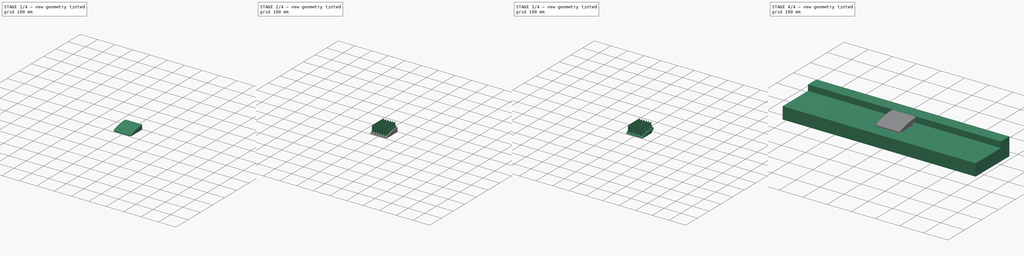
[diagram: build sequence overview — one tinted view per stage of 4, left to right]
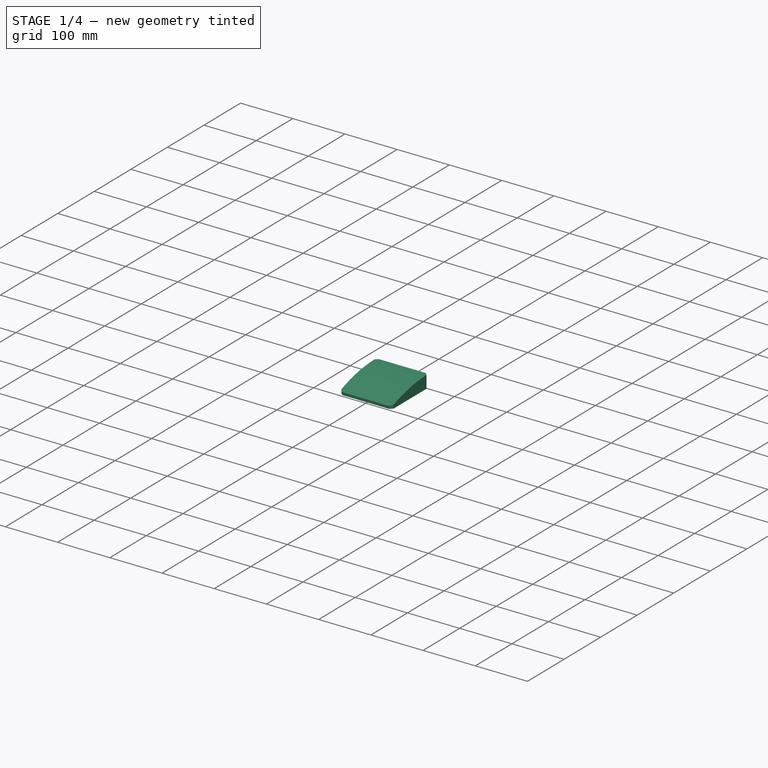
[diagram: stage 1 of 4 — iso view after this stage's code; geometry added in this stage tinted green]
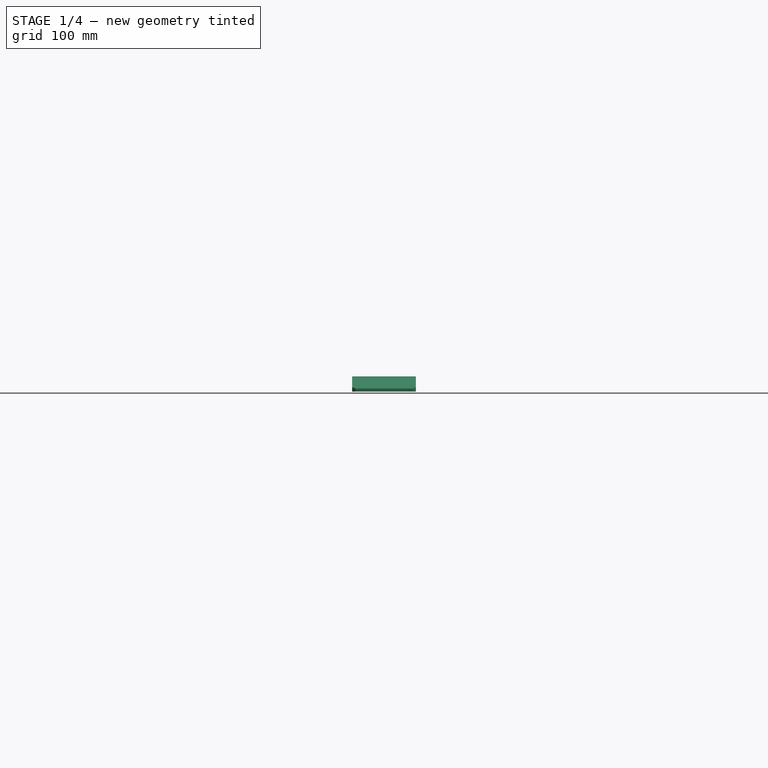
[diagram: stage 1 of 4 — front view after this stage's code; geometry added in this stage tinted green]
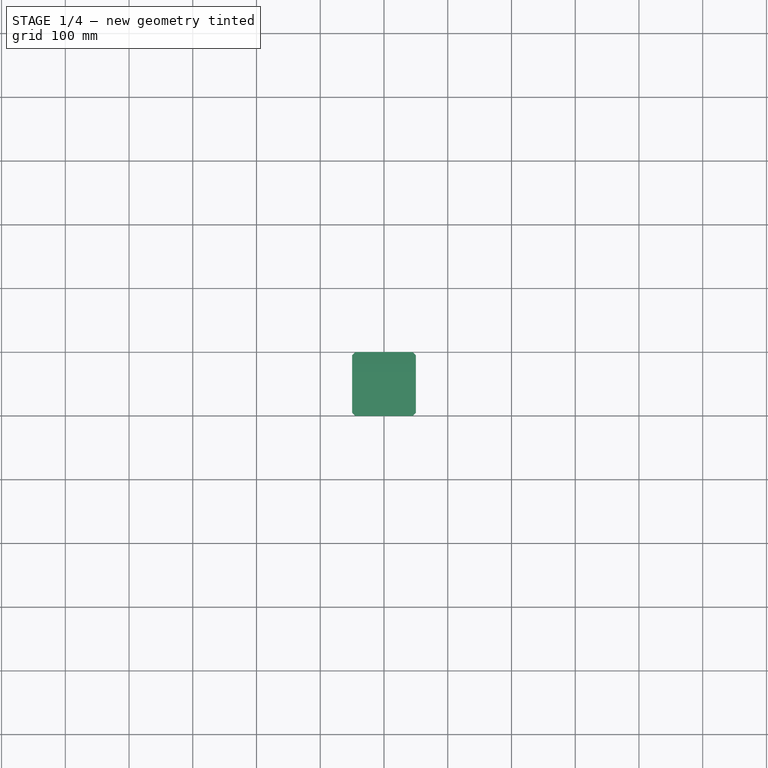
[diagram: stage 1 of 4 — top view after this stage's code; geometry added in this stage tinted green]
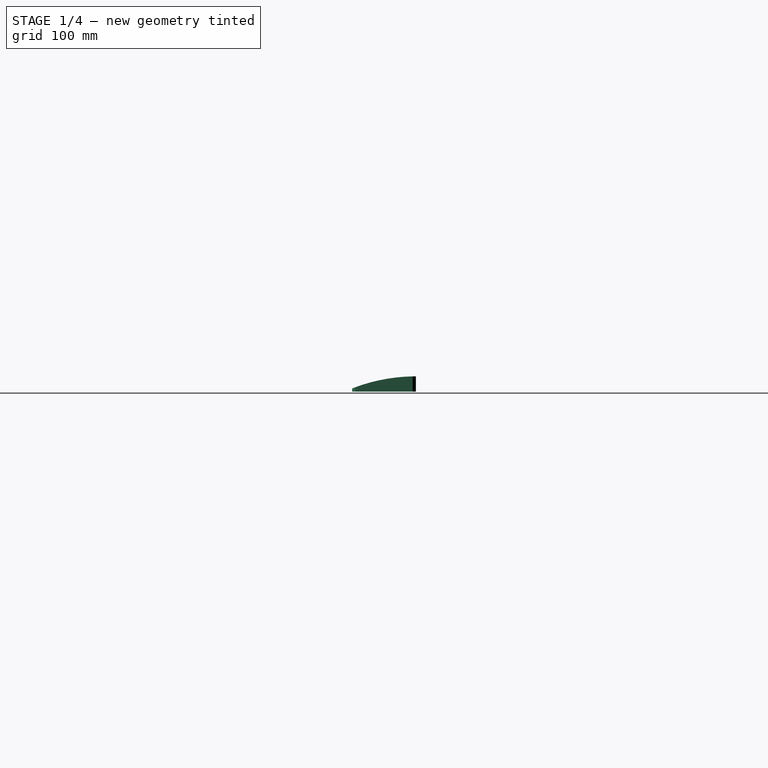
[diagram: stage 1 of 4 — right view after this stage's code; geometry added in this stage tinted green]
FCSTD DOCUMENT  (FreeCAD 2020.12.13R23076 +3015 (Git))
Label: Modular Ramp v1.1
License: All rights reserved
LicenseURL: http://en.wikipedia.org/wiki/All_rights_reserved
objects: Sketcher::SketchObject×9, PartDesign::Pad×5, PartDesign::Body×2, PartDesign::Chamfer×2, Spreadsheet::Sheet×2, PartDesign::Pocket×2, TechDraw::DrawViewPart×2, PartDesign::Plane×1, PartDesign::ShapeBinder×1, PartDesign::Thickness×1, PartDesign::Fillet×1, PartDesign::SubShapeBinder×1, TechDraw::DrawSVGTemplate×1, TechDraw::DrawPage×1
note: 47 computed .brp shape members not serialized (recipe doc carries the construction recipe); baked Part::Feature solids carry a one-line shape summary decoded from their .brp

FEATURE [PartDesign::Body] Body  label="Floor"
  ExportMode = 0
  Group = -> [DatumPlane,Sketch,Pad]
  Origin = -> Origin
  SingleSolid = true
  Tip = -> Pad
  _ExportChildren = -> [DatumPlane,Pad]
  _GroupVersion = 1
FEATURE [PartDesign::ShapeBinder] ShapeBinder
  Placement = pos=(0,0,0) rot=(0.57735,0.57735,0.57735;2.0944rad)
  Support = -> [Sketch]
  TraceSupport = false
FEATURE [Sketcher::SketchObject] Sketch001
  ExternalGeometry = -> [ShapeBinder]
  MapMode = 5
  Placement = pos=(0,0,0) rot=(0.57735,0.57735,0.57735;2.0944rad)
  Support = -> [YZ_Plane001]
  sketch-geometry (4):
    g0: LineSegment StartX=-2.7e-15 StartY=24 StartZ=0 EndX=0 EndY=0 EndZ=0
    g1: LineSegment StartX=0 StartY=0 StartZ=0 EndX=-100 EndY=0 EndZ=0
    g2: LineSegment StartX=-100 StartY=0 StartZ=0 EndX=-100 EndY=5 EndZ=0
    g3: ArcOfCircle CenterX=0 CenterY=-248.658 CenterZ=0 NormalX=0 NormalY=0 NormalZ=1 AngleXU=0 Radius=272.658 StartAngle=1.5708 EndAngle=1.94632
  constraints (11):
    c: Coincident(g0,g1)
    c: Coincident(g1,g2)
    c: Vertical(g2)
    c: Coincident(g0,g-1)
    c: Coincident(g0,g-3)
    c: Horizontal(g1)
    c: DistanceY(g2,g2) = 5
    c: DistanceX(g1,g1) = 100
    c: Coincident(g3,g2)
    c: Coincident(g3,g0)
    c: PointOnObject(g3,g-2)
FEATURE [PartDesign::Pad] Pad001
  ClaimChildren = false
  Direction = (1,1,1)
  Fit = 0
  FitJoin = 0
  InnerFit = 0
  InnerFitJoin = 0
  InnerTaperAngle = 0
  InnerTaperAngleRev = 0
  Length = 100
  Length2 = 100
  Midplane = true
  NewSolid = false
  Placement = pos=(0,0,0) rot=(0.57735,0.57735,0.57735;2.0944rad)
  Profile = -> Sketch001
  Suppress = false
  Type = 0
FEATURE [Sketcher::SketchObject] Sketch002
  MapMode = 5
  Support = -> [XY_Plane001]
  sketch-geometry (50):
    g0: LineSegment StartX=-35 StartY=50 StartZ=0 EndX=-50 EndY=65 EndZ=0
    g1: LineSegment StartX=-50 StartY=65 StartZ=0 EndX=-65 EndY=50 EndZ=0
    g2: LineSegment StartX=-65 StartY=50 StartZ=0 EndX=-50 EndY=35 EndZ=0
    g3: LineSegment StartX=-50 StartY=35 StartZ=0 EndX=-35 EndY=50 EndZ=0
    g4: Circle [constr] CenterX=-50 CenterY=50 CenterZ=0 NormalX=0 NormalY=0 NormalZ=1 AngleXU=0 Radius=15
    g5: LineSegment [constr] StartX=-70.2763 StartY=50 StartZ=0 EndX=-8.70663 EndY=50 EndZ=0
    g6: LineSegment [constr] StartX=-50 StartY=32.3177 StartZ=0 EndX=-50 EndY=-12.0062 EndZ=0
    g7: GeomPoint X=-50 Y=50 Z=0
    g8: LineSegment [constr] StartX=-50 StartY=35 StartZ=0 EndX=-12.0188 EndY=35 EndZ=0
    g9: LineSegment StartX=-12.0188 StartY=65 StartZ=0 EndX=-27.0188 EndY=50 EndZ=0
    g10: LineSegment StartX=2.98118 StartY=50 StartZ=0 EndX=-12.0188 EndY=65 EndZ=0
    g11: LineSegment StartX=-27.0188 StartY=50 StartZ=0 EndX=-12.0188 EndY=35 EndZ=0
    g12: LineSegment StartX=-12.0188 StartY=35 StartZ=0 EndX=2.98118 EndY=50 EndZ=0
    g13: LineSegment [constr] StartX=-50 StartY=65 StartZ=0 EndX=-12.0188 EndY=65 EndZ=0
    g14: LineSegment StartX=25.9624 StartY=65 StartZ=0 EndX=10.9624 EndY=50 EndZ=0
    g15: LineSegment StartX=40.9624 StartY=50 StartZ=0 EndX=25.9624 EndY=65 EndZ=0
    g16: LineSegment StartX=10.9624 StartY=50 StartZ=0 EndX=25.9624 EndY=35 EndZ=0
    g17: LineSegment StartX=25.9624 StartY=35 StartZ=0 EndX=40.9624 EndY=50 EndZ=0
    g18: LineSegment [constr] StartX=-12.0188 StartY=65 StartZ=0 EndX=25.9624 EndY=65 EndZ=0
    g19: LineSegment StartX=-50 StartY=27.0188 StartZ=0 EndX=-65 EndY=12.0188 EndZ=0
    g20: LineSegment StartX=-35 StartY=12.0188 StartZ=0 EndX=-50 EndY=27.0188 EndZ=0
    g21: LineSegment StartX=-65 StartY=12.0188 StartZ=0 EndX=-50 EndY=-2.98118 EndZ=0
    g22: LineSegment StartX=-50 StartY=-2.98118 StartZ=0 EndX=-35 EndY=12.0188 EndZ=0
    g23: LineSegment [constr] StartX=-50 StartY=65 StartZ=0 EndX=-50 EndY=27.0188 EndZ=0
    g24: LineSegment StartX=-12.0188 StartY=27.0188 StartZ=0 EndX=-27.0188 EndY=12.0188 EndZ=0
    g25: LineSegment StartX=2.98118 StartY=12.0188 StartZ=0 EndX=-12.0188 EndY=27.0188 EndZ=0
    g26: LineSegment StartX=-27.0188 StartY=12.0188 StartZ=0 EndX=-12.0188 EndY=-2.98118 EndZ=0
    g27: LineSegment StartX=-12.0188 StartY=-2.98118 StartZ=0 EndX=2.98118 EndY=12.0188 EndZ=0
    g28: LineSegment [constr] StartX=-50 StartY=27.0188 StartZ=0 EndX=-12.0188 EndY=27.0188 EndZ=0
    g29: LineSegment StartX=25.9624 StartY=27.0188 StartZ=0 EndX=10.9624 EndY=12.0188 EndZ=0
    g30: LineSegment StartX=40.9624 StartY=12.0188 StartZ=0 EndX=25.9624 EndY=27.0188 EndZ=0
    g31: LineSegment StartX=10.9624 StartY=12.0188 StartZ=0 EndX=25.9624 EndY=-2.98118 EndZ=0
    g32: LineSegment StartX=25.9624 StartY=-2.98118 StartZ=0 EndX=40.9624 EndY=12.0188 EndZ=0
    g33: LineSegment [constr] StartX=-12.0188 StartY=27.0188 StartZ=0 EndX=25.9624 EndY=27.0188 EndZ=0
    g34: LineSegment StartX=-50 StartY=-10.9624 StartZ=0 EndX=-65 EndY=-25.9624 EndZ=0
    g35: LineSegment StartX=-35 StartY=-25.9624 StartZ=0 EndX=-50 EndY=-10.9624 EndZ=0
    g36: LineSegment StartX=-65 StartY=-25.9624 StartZ=0 EndX=-50 EndY=-40.9624 EndZ=0
    g37: LineSegment StartX=-50 StartY=-40.9624 StartZ=0 EndX=-35 EndY=-25.9624 EndZ=0
    g38: LineSegment [constr] StartX=-50 StartY=27.0188 StartZ=0 EndX=-50 EndY=-10.9624 EndZ=0
    g39: LineSegment StartX=-12.0188 StartY=-10.9624 StartZ=0 EndX=-27.0188 EndY=-25.9624 EndZ=0
    g40: LineSegment StartX=2.98118 StartY=-25.9624 StartZ=0 EndX=-12.0188 EndY=-10.9624 EndZ=0
    g41: LineSegment StartX=-27.0188 StartY=-25.9624 StartZ=0 EndX=-12.0188 EndY=-40.9624 EndZ=0
    g42: LineSegment StartX=-12.0188 StartY=-40.9624 StartZ=0 EndX=2.98118 EndY=-25.9624 EndZ=0
    g43: LineSegment [constr] StartX=-50 StartY=-10.9624 StartZ=0 EndX=-12.0188 EndY=-10.9624 EndZ=0
    g44: LineSegment StartX=25.9624 StartY=-10.9624 StartZ=0 EndX=10.9624 EndY=-25.9624 EndZ=0
    g45: LineSegment StartX=40.9624 StartY=-25.9624 StartZ=0 EndX=25.9624 EndY=-10.9624 EndZ=0
    g46: LineSegment StartX=10.9624 StartY=-25.9624 StartZ=0 EndX=25.9624 EndY=-40.9624 EndZ=0
    g47: LineSegment StartX=25.9624 StartY=-40.9624 StartZ=0 EndX=40.9624 EndY=-25.9624 EndZ=0
    g48: LineSegment [constr] StartX=-12.0188 StartY=-10.9624 StartZ=0 EndX=25.9624 EndY=-10.9624 EndZ=0
    g49: Circle [constr] CenterX=-23.6313 CenterY=-6.54886 CenterZ=0 NormalX=0 NormalY=0 NormalZ=1 AngleXU=0 Radius=28.1021
  constraints (110):
    c: Coincident(g0,g1)
    c: Coincident(g1,g2)
    c: Coincident(g2,g3)
    c: Coincident(g3,g0)
    c: Equal(g0,g1)
    c: Equal(g0,g2)
    c: Equal(g0,g3)
    c: PointOnObject(g0,g4)
    c: PointOnObject(g1,g4)
    c: PointOnObject(g2,g4)
    c: PointOnObject(g3,g4)
    c: Horizontal(g5)
    c: Vertical(g6)
    c: PointOnObject(g7,g5)
    c: PointOnObject(g7,g6)
    c: DistanceX(g6,g-1) = 50
    c: DistanceY(g-1,g5) = 50
    c: Diameter(g4) = 30
    c: Coincident(g4,g7)
    c: Angle(g2,g5) = 0.785398
    c: Coincident(g8,g2)
    c: Horizontal(g8)
    c: Coincident(g10,g9)
    c: Coincident(g9,g11)
    c: Coincident(g11,g12)
    c: Coincident(g12,g10)
    c: Equal(g10,g9)
    c: Equal(g10,g11)
    c: Equal(g10,g12)
    c: Coincident(g1,g13)
    c: Coincident(g9,g13)
    c: Distance(g13) = 37.9812
    c: Angle(g13) = 0
    c: Coincident(g15,g14)
    c: Coincident(g14,g16)
    c: Coincident(g16,g17)
    c: Coincident(g17,g15)
    c: Equal(g15,g14)
    c: Equal(g15,g16)
    c: Equal(g15,g17)
    c: Coincident(g9,g18)
    c: Coincident(g14,g18)
    c: Equal(g13,g18)
    c: Parallel(g18,g13)
    c: Coincident(g20,g19)
    c: Coincident(g19,g21)
    c: Coincident(g21,g22)
    c: Coincident(g22,g20)
    c: Equal(g20,g19)
    c: Equal(g20,g21)
    c: Equal(g20,g22)
    c: Coincident(g1,g23)
    c: Coincident(g19,g23)
    c: Equal(g23,g13)
    c: Perpendicular(g23,g13)
    c: Coincident(g25,g24)
    c: Coincident(g24,g26)
    c: Coincident(g26,g27)
    c: Coincident(g27,g25)
    c: Equal(g25,g24)
    c: Equal(g25,g26)
    c: Equal(g25,g27)
    c: Coincident(g19,g28)
    c: Coincident(g24,g28)
    c: Equal(g13,g28)
    c: Parallel(g28,g13)
    c: Coincident(g30,g29)
    c: Coincident(g29,g31)
    c: Coincident(g31,g32)
    c: Coincident(g32,g30)
    c: Equal(g30,g29)
    c: Equal(g30,g31)
    c: Equal(g30,g32)
    c: Coincident(g24,g33)
    c: Coincident(g29,g33)
    c: Equal(g13,g33)
    c: Parallel(g33,g13)
    c: Coincident(g35,g34)
    c: Coincident(g34,g36)
    c: Coincident(g36,g37)
    c: Coincident(g37,g35)
    c: Equal(g35,g34)
    c: Equal(g35,g36)
    c: Equal(g35,g37)
    c: Coincident(g19,g38)
    c: Coincident(g34,g38)
    c: Equal(g23,g38)
    c: Perpendicular(g38,g13)
    c: Coincident(g40,g39)
    c: Coincident(g39,g41)
    c: Coincident(g41,g42)
    c: Coincident(g42,g40)
    c: Equal(g40,g39)
    c: Equal(g40,g41)
    c: Equal(g40,g42)
    c: Coincident(g34,g43)
    c: Coincident(g39,g43)
    c: Equal(g13,g43)
    c: Parallel(g43,g13)
    c: Coincident(g45,g44)
    c: Coincident(g44,g46)
    c: Coincident(g46,g47)
    c: Coincident(g47,g45)
    c: Equal(g45,g44)
    c: Equal(g45,g46)
    c: Equal(g45,g47)
    c: Coincident(g39,g48)
    c: Coincident(g44,g48)
    c: Equal(g13,g48)
    c: Parallel(g48,g13)
FEATURE [Sketcher::SketchObject] Sketch003
  MapMode = 5
  Support = -> [XY_Plane001]
  sketch-geometry (32):
    g0: LineSegment StartX=-11.5573 StartY=-5.20575 StartZ=0 EndX=-11.5573 EndY=-10.2058 EndZ=0
    g1: LineSegment StartX=-9.55735 StartY=-5.20575 StartZ=0 EndX=-9.55735 EndY=-10.2058 EndZ=0
    g2: LineSegment StartX=-23.5573 StartY=-10.2058 StartZ=0 EndX=-18.5573 EndY=-10.2058 EndZ=0
    g3: LineSegment StartX=-23.5573 StartY=-12.2057 StartZ=0 EndX=-18.5573 EndY=-12.2057 EndZ=0
    g4: LineSegment StartX=-23.5573 StartY=-17.2057 StartZ=0 EndX=-18.5573 EndY=-17.2057 EndZ=0
    g5: LineSegment StartX=-4.55735 StartY=-19.2057 StartZ=0 EndX=-9.55735 EndY=-19.2057 EndZ=0
    g6: LineSegment StartX=-16.5573 StartY=-5.20575 StartZ=0 EndX=-16.5573 EndY=-10.2058 EndZ=0
    g7: LineSegment StartX=-18.5573 StartY=-5.20575 StartZ=0 EndX=-18.5573 EndY=-10.2058 EndZ=0
    g8: LineSegment StartX=-9.55735 StartY=-5.20575 StartZ=0 EndX=-11.5573 EndY=-5.20575 EndZ=0
    g9: LineSegment StartX=-23.5573 StartY=-10.2058 StartZ=0 EndX=-23.5573 EndY=-12.2057 EndZ=0
    g10: LineSegment StartX=-18.5573 StartY=-24.2057 StartZ=0 EndX=-16.5573 EndY=-24.2057 EndZ=0
    g11: LineSegment StartX=-4.55735 StartY=-10.2058 StartZ=0 EndX=-4.55735 EndY=-12.2058 EndZ=0
    g12: LineSegment StartX=-4.55735 StartY=-17.2057 StartZ=0 EndX=-4.55735 EndY=-19.2057 EndZ=0
    g13: LineSegment StartX=-16.5573 StartY=-5.20575 StartZ=0 EndX=-18.5573 EndY=-5.20575 EndZ=0
    g14: LineSegment StartX=-23.5573 StartY=-17.2057 StartZ=0 EndX=-23.5573 EndY=-19.2057 EndZ=0
    g15: LineSegment StartX=-11.5573 StartY=-24.2057 StartZ=0 EndX=-9.55735 EndY=-24.2057 EndZ=0
    g16: LineSegment StartX=-9.55735 StartY=-19.2057 StartZ=0 EndX=-9.55735 EndY=-24.2058 EndZ=0
    g17: LineSegment StartX=-9.55735 StartY=-17.2057 StartZ=0 EndX=-4.55735 EndY=-17.2057 EndZ=0
    g18: LineSegment StartX=-11.5573 StartY=-19.2057 StartZ=0 EndX=-16.5573 EndY=-19.2057 EndZ=0
    g19: LineSegment StartX=-11.5573 StartY=-19.2057 StartZ=0 EndX=-11.5573 EndY=-24.2057 EndZ=0
    g20: LineSegment StartX=-16.5573 StartY=-19.2057 StartZ=0 EndX=-16.5573 EndY=-24.2057 EndZ=0
    g21: LineSegment StartX=-16.5573 StartY=-17.2057 StartZ=0 EndX=-11.5573 EndY=-17.2057 EndZ=0
    g22: LineSegment StartX=-18.5573 StartY=-19.2057 StartZ=0 EndX=-23.5573 EndY=-19.2057 EndZ=0
    g23: LineSegment StartX=-18.5573 StartY=-19.2057 StartZ=0 EndX=-18.5573 EndY=-24.2057 EndZ=0
    g24: LineSegment StartX=-16.5573 StartY=-10.2058 StartZ=0 EndX=-11.5573 EndY=-10.2058 EndZ=0
    g25: LineSegment StartX=-18.5573 StartY=-12.2057 StartZ=0 EndX=-18.5573 EndY=-17.2057 EndZ=0
    g26: LineSegment StartX=-16.5573 StartY=-12.2058 StartZ=0 EndX=-11.5573 EndY=-12.2058 EndZ=0
    g27: LineSegment StartX=-16.5573 StartY=-12.2058 StartZ=0 EndX=-16.5573 EndY=-17.2057 EndZ=0
    g28: LineSegment StartX=-9.55735 StartY=-10.2058 StartZ=0 EndX=-4.55735 EndY=-10.2058 EndZ=0
    g29: LineSegment StartX=-11.5573 StartY=-12.2058 StartZ=0 EndX=-11.5573 EndY=-17.2057 EndZ=0
    g30: LineSegment StartX=-9.55735 StartY=-12.2058 StartZ=0 EndX=-4.55735 EndY=-12.2058 EndZ=0
    g31: LineSegment StartX=-9.55735 StartY=-12.2058 StartZ=0 EndX=-9.55735 EndY=-17.2057 EndZ=0
  constraints (78):
    c: Vertical(g0)
    c: Vertical(g1)
    c: Horizontal(g2)
    c: Horizontal(g3)
    c: Horizontal(g4)
    c: Horizontal(g5)
    c: Vertical(g6)
    c: Vertical(g7)
    c: Horizontal(g8)
    c: Horizontal(g10)
    c: Vertical(g9)
    c: PointOnObject(g7,g8)
    c: PointOnObject(g16,g10)
    c: PointOnObject(g22,g9)
    c: Coincident(g11,g30)
    c: Coincident(g12,g5)
    c: Vertical(g12)
    c: Equal(g12,g11)
    c: Vertical(g11)
    c: Coincident(g8,g1)
    c: Coincident(g8,g0)
    c: Coincident(g13,g6)
    c: Tangent(g8,g13)
    c: PointOnObject(g13,g7)
    c: Coincident(g9,g2)
    c: Coincident(g9,g3)
    c: Coincident(g14,g4)
    c: Tangent(g9,g14)
    c: PointOnObject(g14,g5)
    c: Coincident(g10,g23)
    c: Coincident(g10,g20)
    c: Coincident(g15,g19)
    c: Tangent(g10,g15)
    c: PointOnObject(g15,g1)
    c: Tangent(g1,g16)
    c: Coincident(g17,g31)
    c: Tangent(g4,g17)
    c: Coincident(g5,g16)
    c: Tangent(g5,g18)
    c: Coincident(g29,g21)
    c: Coincident(g19,g18)
    c: Tangent(g0,g19)
    c: Tangent(g6,g20)
    c: Coincident(g21,g27)
    c: Tangent(g4,g21)
    c: Coincident(g18,g20)
    c: Tangent(g18,g22)
    c: Coincident(g25,g4)
    c: Coincident(g23,g22)
    c: Tangent(g7,g23)
    c: Tangent(g2,g24)
    c: Coincident(g7,g2)
    c: Tangent(g7,g25)
    c: Coincident(g3,g25)
    c: Tangent(g3,g26)
    c: Coincident(g6,g24)
    c: Coincident(g27,g26)
    c: Tangent(g6,g27)
    c: Tangent(g24,g28)
    c: Coincident(g0,g24)
    c: Tangent(g0,g29)
    c: Coincident(g26,g29)
    c: Tangent(g26,g30)
    c: Coincident(g1,g28)
    c: Coincident(g31,g30)
    c: Tangent(g1,g31)
    c: Coincident(g28,g11)
    c: Coincident(g12,g17)
    c: Equal(g8,g11)
    c: Equal(g8,g13)
    c: Equal(g28,g24)
    c: Equal(g24,g2)
    c: Equal(g7,g2)
    c: Equal(g7,g25)
    c: Equal(g25,g23)
    c: Equal(g16,g5)
    c: DistanceY(g11,g11) = 2
    c: DistanceY(g1,g1) = 5
FEATURE [PartDesign::Chamfer] Chamfer
  Angle = 45
  Base = -> Pad001 [Edge3,Edge9,Edge10,Edge4]
  BaseFeature = -> Pad001
  ChamferType = 0
  FlipDirection = false
  NewSolid = false
  Placement = pos=(0,0,0) rot=(0.57735,0.57735,0.57735;2.0944rad)
  Size = 5
  Size2 = 1
  SupportTransform = false
  Suppress = false
FEATURE [PartDesign::Thickness] Thickness
  Base = -> Chamfer [Face5]
  BaseFeature = -> Chamfer
  Intersection = false
  Join = 1
  Mode = 0
  NewSolid = false
  Reversed = true
  SupportTransform = false
  Suppress = false
  Value = 3
  expr: Value = Spreadsheet.ThicknessOuter
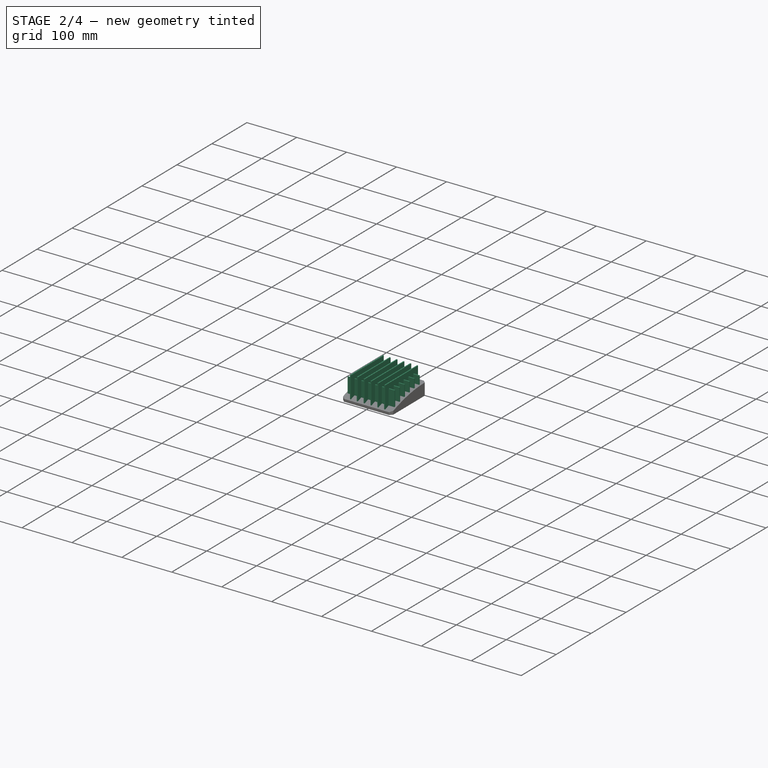
[diagram: stage 2 of 4 — iso view after this stage's code; geometry added in this stage tinted green]
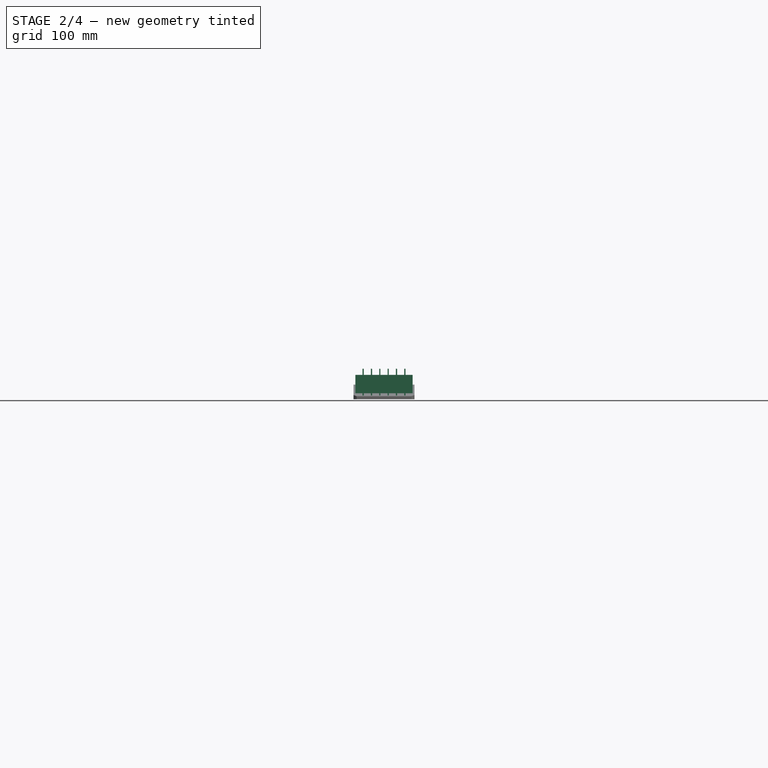
[diagram: stage 2 of 4 — front view after this stage's code; geometry added in this stage tinted green]
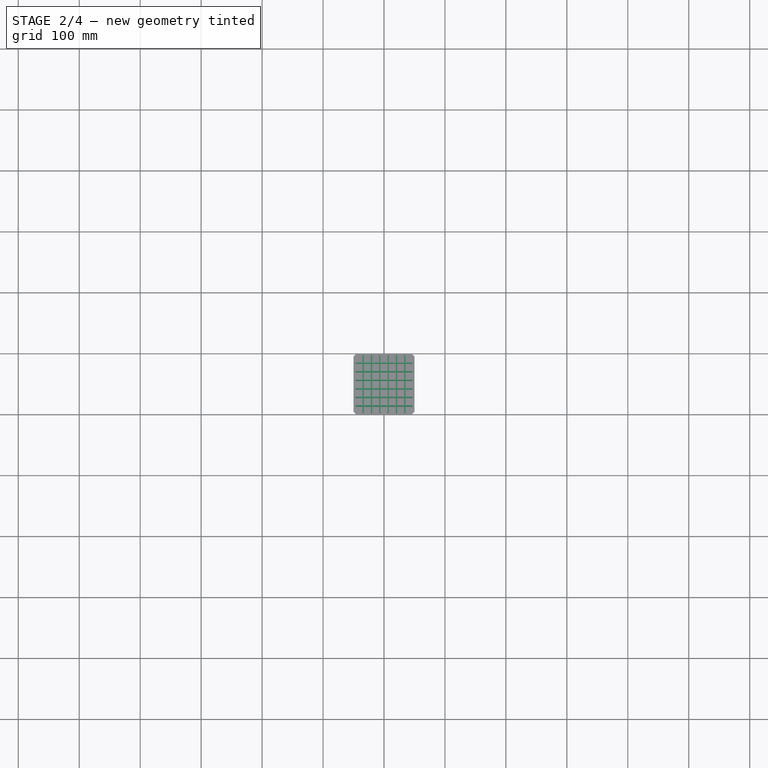
[diagram: stage 2 of 4 — top view after this stage's code; geometry added in this stage tinted green]
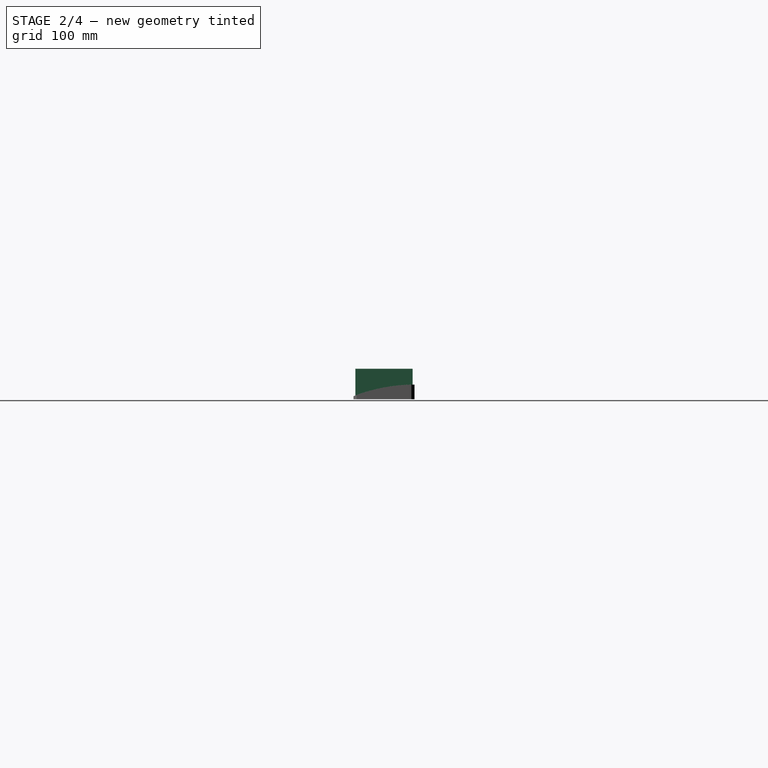
[diagram: stage 2 of 4 — right view after this stage's code; geometry added in this stage tinted green]
FEATURE [Sketcher::SketchObject] Sketch004
  MapMode = 5
  Support = -> [XY_Plane001]
  expr: Constraints[20] = <<Dimensions>>.ThicknessRibs
  expr: Constraints[24] = <<Dimensions>>.ThicknessOuter
  expr: Constraints[73] = <<Dimensions>>.ThicknessRibs
  expr: Constraints[74] = <<Dimensions>>.ThicknessRibs
  expr: Constraints[75] = <<Dimensions>>.ThicknessRibs
  expr: Constraints[76] = <<Dimensions>>.ThicknessRibs
  expr: Constraints[77] = <<Dimensions>>.ThicknessRibs
  expr: Constraints[95] = Pad001.Length - <<Dimensions>>.ThicknessOuter * 2
  sketch-geometry (47):
    g0: LineSegment [constr] StartX=-60 StartY=-15 StartZ=0 EndX=60 EndY=-15 EndZ=0
    g1: LineSegment [constr] StartX=60 StartY=-17 StartZ=0 EndX=-60 EndY=-17 EndZ=0
    g2: LineSegment [constr] StartX=-60 StartY=-29 StartZ=0 EndX=60 EndY=-29 EndZ=0
    g3: LineSegment [constr] StartX=60 StartY=-31 StartZ=0 EndX=-60 EndY=-31 EndZ=0
    g4: LineSegment [constr] StartX=-60 StartY=10 StartZ=0 EndX=-60 EndY=-110 EndZ=0
    g5: LineSegment [constr] StartX=60 StartY=-110 StartZ=0 EndX=60 EndY=10 EndZ=0
    g6: LineSegment [constr] StartX=-60 StartY=-3 StartZ=0 EndX=60 EndY=-3 EndZ=0
    g7: Circle [constr] CenterX=60 CenterY=-9 CenterZ=0 NormalX=0 NormalY=0 NormalZ=1 AngleXU=0 Radius=6
    g8: Circle [constr] CenterX=60 CenterY=-23 CenterZ=0 NormalX=0 NormalY=0 NormalZ=1 AngleXU=0 Radius=6
    g9: LineSegment [constr] StartX=-60 StartY=-43 StartZ=0 EndX=60 EndY=-43 EndZ=0
    g10: LineSegment [constr] StartX=60 StartY=-45 StartZ=0 EndX=-60 EndY=-45 EndZ=0
    g11: LineSegment [constr] StartX=-60 StartY=-57 StartZ=0 EndX=60 EndY=-57 EndZ=0
    g12: LineSegment [constr] StartX=60 StartY=-59 StartZ=0 EndX=-60 EndY=-59 EndZ=0
    g13: LineSegment [constr] StartX=-60 StartY=-71 StartZ=0 EndX=60 EndY=-71 EndZ=0
    g14: LineSegment [constr] StartX=-60 StartY=-73 StartZ=0 EndX=60 EndY=-73 EndZ=0
    g15: LineSegment [constr] StartX=60 StartY=-85 StartZ=0 EndX=-60 EndY=-85 EndZ=0
    g16: LineSegment [constr] StartX=-60 StartY=-87 StartZ=0 EndX=60 EndY=-87 EndZ=0
    g17: Circle [constr] CenterX=60 CenterY=-37 CenterZ=0 NormalX=0 NormalY=0 NormalZ=1 AngleXU=0 Radius=6
    g18: Circle [constr] CenterX=60 CenterY=-51 CenterZ=0 NormalX=0 NormalY=0 NormalZ=1 AngleXU=0 Radius=6
    g19: Circle [constr] CenterX=60 CenterY=-65 CenterZ=0 NormalX=0 NormalY=0 NormalZ=1 AngleXU=0 Radius=6
    g20: Circle [constr] CenterX=60 CenterY=-79 CenterZ=0 NormalX=0 NormalY=0 NormalZ=1 AngleXU=0 Radius=6
    g21: Circle [constr] CenterX=60 CenterY=-93 CenterZ=0 NormalX=0 NormalY=0 NormalZ=1 AngleXU=0 Radius=6
    g22: LineSegment [constr] StartX=60 StartY=-99 StartZ=0 EndX=-60 EndY=-99 EndZ=0
    g23: LineSegment StartX=-47 StartY=-15 StartZ=0 EndX=47 EndY=-15 EndZ=0
    g24: LineSegment StartX=47 StartY=-15 StartZ=0 EndX=47 EndY=-17 EndZ=0
    g25: LineSegment StartX=47 StartY=-17 StartZ=0 EndX=-47 EndY=-17 EndZ=0
    g26: LineSegment StartX=-47 StartY=-17 StartZ=0 EndX=-47 EndY=-15 EndZ=0
    g27: LineSegment StartX=-47 StartY=-29 StartZ=0 EndX=47 EndY=-29 EndZ=0
    g28: LineSegment StartX=47 StartY=-29 StartZ=0 EndX=47 EndY=-31 EndZ=0
    g29: LineSegment StartX=47 StartY=-31 StartZ=0 EndX=-47 EndY=-31 EndZ=0
    g30: LineSegment StartX=-47 StartY=-31 StartZ=0 EndX=-47 EndY=-29 EndZ=0
    g31: LineSegment StartX=47 StartY=-43 StartZ=0 EndX=-47 EndY=-43 EndZ=0
    g32: LineSegment StartX=-47 StartY=-43 StartZ=0 EndX=-47 EndY=-45 EndZ=0
    g33: LineSegment StartX=-47 StartY=-45 StartZ=0 EndX=47 EndY=-45 EndZ=0
    g34: LineSegment StartX=47 StartY=-45 StartZ=0 EndX=47 EndY=-43 EndZ=0
    g35: LineSegment StartX=-47 StartY=-57 StartZ=0 EndX=47 EndY=-57 EndZ=0
    g36: LineSegment StartX=47 StartY=-57 StartZ=0 EndX=47 EndY=-59 EndZ=0
    g37: LineSegment StartX=47 StartY=-59 StartZ=0 EndX=-47 EndY=-59 EndZ=0
    g38: LineSegment StartX=-47 StartY=-59 StartZ=0 EndX=-47 EndY=-57 EndZ=0
    g39: LineSegment StartX=47 StartY=-71 StartZ=0 EndX=-47 EndY=-71 EndZ=0
    g40: LineSegment StartX=-47 StartY=-71 StartZ=0 EndX=-47 EndY=-73 EndZ=0
    g41: LineSegment StartX=-47 StartY=-73 StartZ=0 EndX=47 EndY=-73 EndZ=0
    g42: LineSegment StartX=47 StartY=-73 StartZ=0 EndX=47 EndY=-71 EndZ=0
    g43: LineSegment StartX=-47 StartY=-85 StartZ=0 EndX=47 EndY=-85 EndZ=0
    g44: LineSegment StartX=47 StartY=-85 StartZ=0 EndX=47 EndY=-87 EndZ=0
    g45: LineSegment StartX=47 StartY=-87 StartZ=0 EndX=-47 EndY=-87 EndZ=0
    g46: LineSegment StartX=-47 StartY=-87 StartZ=0 EndX=-47 EndY=-85 EndZ=0
  constraints (157):
    c: Horizontal(g0)
    c: Horizontal(g1)
    c: Horizontal(g2)
    c: Horizontal(g3)
    c: Vertical(g4)
    c: Vertical(g5)
    c: PointOnObject(g0,g4)
    c: PointOnObject(g1,g4)
    c: PointOnObject(g2,g4)
    c: PointOnObject(g3,g4)
    c: PointOnObject(g3,g5)
    c: PointOnObject(g2,g5)
    c: PointOnObject(g1,g5)
    c: PointOnObject(g0,g5)
    c: DistanceX(g-1,g5) = 60
    c: DistanceX(g4,g-1) = 60
    c: DistanceY(g-1,g5) = 10
    c: Horizontal(g4,g5)
    c: Horizontal(g5,g4)
    c: DistanceY(g5,g-1) = 110
    c: DistanceY(g1,g0) = 2
    c: PointOnObject(g6,g4)
    c: PointOnObject(g6,g5)
    c: Horizontal(g6)
    c: DistanceY(g6,g-1) = 3
    c: PointOnObject(g7,g5)
    c: PointOnObject(g6,g7)
    c: PointOnObject(g0,g7)
    c: Diameter(g7) = 12
    c: PointOnObject(g8,g5)
    c: PointOnObject(g1,g8)
    c: PointOnObject(g2,g8)
    c: Equal(g7,g8)
    c: PointOnObject(g9,g4)
    c: PointOnObject(g9,g5)
    c: Horizontal(g9)
    c: PointOnObject(g10,g5)
    c: PointOnObject(g10,g4)
    c: Horizontal(g10)
    c: PointOnObject(g11,g4)
    c: PointOnObject(g11,g5)
    c: Horizontal(g11)
    c: PointOnObject(g12,g5)
    c: PointOnObject(g12,g4)
    c: Horizontal(g12)
    c: PointOnObject(g13,g4)
    c: PointOnObject(g13,g5)
    c: Horizontal(g13)
    c: PointOnObject(g14,g4)
    c: PointOnObject(g14,g5)
    c: Horizontal(g14)
    c: PointOnObject(g15,g5)
    c: PointOnObject(g15,g4)
    c: Horizontal(g15)
    c: PointOnObject(g16,g4)
    c: PointOnObject(g16,g5)
    c: Horizontal(g16)
    c: PointOnObject(g17,g5)
    c: PointOnObject(g9,g17)
    c: PointOnObject(g18,g5)
    c: PointOnObject(g11,g18)
    c: PointOnObject(g19,g5)
    c: PointOnObject(g12,g19)
    c: PointOnObject(g20,g5)
    c: PointOnObject(g14,g20)
    c: PointOnObject(g3,g17)
    c: PointOnObject(g10,g18)
    c: PointOnObject(g13,g19)
    c: PointOnObject(g15,g20)
    c: Equal(g8,g17)
    c: Equal(g17,g18)
    c: Equal(g18,g19)
    c: Equal(g19,g20)
    c: DistanceY(g3,g2) = 2
    c: DistanceY(g10,g9) = 2
    c: DistanceY(g12,g11) = 2
    c: DistanceY(g14,g13) = 2
    c: DistanceY(g16,g15) = 2
    c: PointOnObject(g21,g5)
    c: PointOnObject(g16,g21)
    c: Equal(g20,g21)
    c: PointOnObject(g22,g5)
    c: PointOnObject(g22,g4)
    c: Horizontal(g22)
    c: PointOnObject(g22,g21)
    c: Coincident(g23,g24)
    c: Coincident(g24,g25)
    c: Coincident(g25,g26)
    c: Coincident(g26,g23)
    c: Horizontal(g25)
    c: Vertical(g24)
    c: Vertical(g26)
    c: PointOnObject(g23,g0)
    c: PointOnObject(g24,g1)
    c: Symmetric(g23,g23,g-2)
    c: DistanceX(g23,g23) = 94
    c: Coincident(g27,g28)
    c: Coincident(g28,g29)
    c: Coincident(g29,g30)
    c: Coincident(g30,g27)
    c: Horizontal(g27)
    c: Horizontal(g29)
    c: Vertical(g28)
    c: Vertical(g30)
    c: PointOnObject(g27,g2)
    c: PointOnObject(g28,g3)
    c: Coincident(g31,g32)
    c: Coincident(g32,g33)
    c: Coincident(g33,g34)
    c: Coincident(g34,g31)
    c: Horizontal(g31)
    c: Horizontal(g33)
    c: Vertical(g32)
    c: Vertical(g34)
    c: PointOnObject(g31,g9)
    c: PointOnObject(g32,g10)
    c: Coincident(g35,g36)
    c: Coincident(g36,g37)
    c: Coincident(g37,g38)
    c: Coincident(g38,g35)
    c: Horizontal(g35)
    c: Horizontal(g37)
    c: Vertical(g36)
    c: Vertical(g38)
    c: PointOnObject(g35,g11)
    c: PointOnObject(g36,g12)
    c: Coincident(g39,g40)
    c: Coincident(g40,g41)
    c: Coincident(g41,g42)
    c: Coincident(g42,g39)
    c: Horizontal(g39)
    c: Horizontal(g41)
    c: Vertical(g40)
    c: Vertical(g42)
    c: PointOnObject(g39,g13)
    c: PointOnObject(g40,g14)
    c: Coincident(g43,g44)
    c: Coincident(g44,g45)
    c: Coincident(g45,g46)
    c: Coincident(g46,g43)
    c: Horizontal(g43)
    c: Horizontal(g45)
    c: Vertical(g44)
    c: Vertical(g46)
    c: PointOnObject(g43,g15)
    c: PointOnObject(g44,g16)
    c: Vertical(g24,g27)
    c: Vertical(g28,g31)
    c: Vertical(g33,g35)
    c: Vertical(g36,g39)
    c: Vertical(g41,g43)
    c: Vertical(g43,g40)
    c: Vertical(g39,g37)
    c: Vertical(g35,g32)
    c: Vertical(g31,g29)
    c: Vertical(g27,g25)
    c: DistanceY(g3,g1) = 14  'RibVerticalDistribution'
FEATURE [Sketcher::SketchObject] Sketch006
  MapMode = 5
  Placement = pos=(0,0,0) rot=(0.57735,0.57735,0.57735;2.0944rad)
  Support = -> [YZ_Plane001]
  expr: Constraints[10] = <<Dimensions>>.BottomCutHeight
  expr: Constraints[21] = <<Dimensions>>.ThicknessOuter
  expr: Constraints[22] = <<Dimensions>>.BottomCutWidth
  sketch-geometry (9):
    g0: LineSegment StartX=0 StartY=0 StartZ=0 EndX=0 EndY=12 EndZ=0
    g1: LineSegment StartX=0 StartY=12 StartZ=0 EndX=-12 EndY=12 EndZ=0
    g2: LineSegment StartX=-12 StartY=12 StartZ=0 EndX=-19 EndY=5 EndZ=0
    g3: LineSegment [constr] StartX=-19 StartY=5 StartZ=0 EndX=-19 EndY=0 EndZ=0
    g4: LineSegment StartX=-19 StartY=0 StartZ=0 EndX=0 EndY=0 EndZ=0
    g5: Circle [constr] CenterX=-9.5 CenterY=0 CenterZ=0 NormalX=0 NormalY=0 NormalZ=1 AngleXU=0 Radius=9.5
    g6: LineSegment StartX=-19 StartY=3 StartZ=0 EndX=-22 EndY=0 EndZ=0
    g7: LineSegment StartX=-19 StartY=0 StartZ=0 EndX=-22 EndY=0 EndZ=0
    g8: LineSegment StartX=-19 StartY=3 StartZ=0 EndX=-19 EndY=5 EndZ=0
  constraints (25):
    c: Coincident(g-1,g0)
    c: PointOnObject(g0,g-2)
    c: Coincident(g0,g1)
    c: Horizontal(g1)
    c: Coincident(g1,g2)
    c: Coincident(g2,g3)
    c: PointOnObject(g3,g-1)
    c: Vertical(g3)
    c: Coincident(g3,g4)
    c: Coincident(g4,g0)
    c: DistanceY(g0,g0) = 12
    c: PointOnObject(g5,g4)
    c: PointOnObject(g0,g5)
    c: PointOnObject(g3,g5)
    c: PointOnObject(g6,g3)
    c: PointOnObject(g6,g-1)
    c: Coincident(g7,g4)
    c: Coincident(g7,g6)
    c: Coincident(g8,g6)
    c: Coincident(g8,g2)
    c: Parallel(g2,g6)
    c: DistanceX(g6,g4) = 3
    c: DistanceX(g4,g0) = 19
    c: Angle(g2,g1) = 2.35619
    c: DistanceX(g2,g1) = 7
FEATURE [Spreadsheet::Sheet] Spreadsheet  label="Dimensions"
  PythonMode = false
  cells = A1=ThicknessOuter; B1(ThicknessOuter)==3mm; A2=ThicknessRibs; B2(ThicknessRibs)==2mm; A3=BottomCutWidth; B3(BottomCutWidth)==19mm; A4=BottomCutHeight; B4(BottomCutHeight)==12mm
FEATURE [Spreadsheet::Sheet] Spreadsheet001  label="Measurements"
  PythonMode = false
  cells = A1=Volume; B1==<<Ramp01>>.Shape.Volume
FEATURE [Sketcher::SketchObject] Sketch008
  MapMode = 5
  Support = -> [XY_Plane001]
  expr: Constraints[57] = Spreadsheet.ThicknessOuter + 12 + Spreadsheet.ThicknessRibs / 2
  expr: Constraints[58] = Sketch004.Constraints.RibVerticalDistribution
  expr: Constraints[6] = Sketch007.Constraints.RibHorizontalDistribution
  sketch-geometry (50):
    g0: LineSegment [constr] StartX=-34.2857 StartY=-103.685 StartZ=0 EndX=-34.2857 EndY=12.2431 EndZ=0
    g1: LineSegment [constr] StartX=-20.5714 StartY=12.2431 StartZ=0 EndX=-20.5714 EndY=-106.631 EndZ=0
    g2: LineSegment [constr] StartX=-6.85714 StartY=-104.725 StartZ=0 EndX=-6.85714 EndY=12.2431 EndZ=0
    g3: LineSegment [constr] StartX=6.85714 StartY=12.2431 StartZ=0 EndX=6.85714 EndY=-106.458 EndZ=0
    g4: LineSegment [constr] StartX=20.5714 StartY=-106.631 StartZ=0 EndX=20.5714 EndY=12.2431 EndZ=0
    g5: LineSegment [constr] StartX=34.2857 StartY=12.2431 StartZ=0 EndX=34.2857 EndY=-107.138 EndZ=0
    g6: LineSegment [constr] StartX=-34.2857 StartY=12.2431 StartZ=0 EndX=-20.5714 EndY=12.2431 EndZ=0
    g7: LineSegment [constr] StartX=-20.5714 StartY=12.2431 StartZ=0 EndX=-6.85714 EndY=12.2431 EndZ=0
    g8: LineSegment [constr] StartX=-6.85714 StartY=12.2431 StartZ=0 EndX=6.85714 EndY=12.2431 EndZ=0
    g9: LineSegment [constr] StartX=6.85714 StartY=12.2431 StartZ=0 EndX=20.5714 EndY=12.2431 EndZ=0
    g10: LineSegment [constr] StartX=20.5714 StartY=12.2431 StartZ=0 EndX=34.2857 EndY=12.2431 EndZ=0
    g11: Circle [constr] CenterX=0 CenterY=12.2431 CenterZ=0 NormalX=0 NormalY=0 NormalZ=1 AngleXU=0 Radius=6.85714
    g12: LineSegment [constr] StartX=-56.6236 StartY=-86 StartZ=0 EndX=58.1091 EndY=-86 EndZ=0
    g13: LineSegment [constr] StartX=58.1091 StartY=-72 StartZ=0 EndX=-59.7065 EndY=-72 EndZ=0
    g14: LineSegment [constr] StartX=-56.9342 StartY=-58 StartZ=0 EndX=58.1091 EndY=-58 EndZ=0
    g15: LineSegment [constr] StartX=58.1091 StartY=-44 StartZ=0 EndX=-57.2807 EndY=-44 EndZ=0
    g16: LineSegment [constr] StartX=-56.2411 StartY=-30 StartZ=0 EndX=58.1091 EndY=-30 EndZ=0
    g17: LineSegment [constr] StartX=58.1091 StartY=-16 StartZ=0 EndX=-60.2263 EndY=-16 EndZ=0
    g18: LineSegment [constr] StartX=58.1091 StartY=-16 StartZ=0 EndX=58.1091 EndY=-30 EndZ=0
    g19: LineSegment [constr] StartX=58.1091 StartY=-30 StartZ=0 EndX=58.1091 EndY=-44 EndZ=0
    g20: LineSegment [constr] StartX=58.1091 StartY=-44 StartZ=0 EndX=58.1091 EndY=-58 EndZ=0
    g21: LineSegment [constr] StartX=58.1091 StartY=-58 StartZ=0 EndX=58.1091 EndY=-72 EndZ=0
    g22: LineSegment [constr] StartX=58.1091 StartY=-72 StartZ=0 EndX=58.1091 EndY=-86 EndZ=0
    g23: LineSegment [constr] StartX=58.1091 StartY=-16 StartZ=0 EndX=58.1091 EndY=0 EndZ=0
    g24: Circle CenterX=-34.2857 CenterY=-58 CenterZ=0 NormalX=0 NormalY=0 NormalZ=1 AngleXU=0 Radius=4
    g25: GeomPoint X=-20.5714 Y=-58 Z=0
    g26: Circle CenterX=-20.5714 CenterY=-58 CenterZ=0 NormalX=0 NormalY=0 NormalZ=1 AngleXU=0 Radius=4
    g27: LineSegment [constr] StartX=-34.2857 StartY=-58 StartZ=0 EndX=-20.5714 EndY=-58 EndZ=0
    g28: Circle CenterX=-6.85714 CenterY=-58 CenterZ=0 NormalX=0 NormalY=0 NormalZ=1 AngleXU=0 Radius=4
    g29: LineSegment [constr] StartX=-20.5714 StartY=-58 StartZ=0 EndX=-6.85714 EndY=-58 EndZ=0
    g30: Circle CenterX=6.85714 CenterY=-58 CenterZ=0 NormalX=0 NormalY=0 NormalZ=1 AngleXU=0 Radius=4
    g31: LineSegment [constr] StartX=-6.85714 StartY=-58 StartZ=0 EndX=6.85714 EndY=-58 EndZ=0
    g32: Circle CenterX=20.5714 CenterY=-58 CenterZ=0 NormalX=0 NormalY=0 NormalZ=1 AngleXU=0 Radius=4
    g33: LineSegment [constr] StartX=6.85714 StartY=-58 StartZ=0 EndX=20.5714 EndY=-58 EndZ=0
    g34: Circle CenterX=34.2857 CenterY=-58 CenterZ=0 NormalX=0 NormalY=0 NormalZ=1 AngleXU=0 Radius=4
    g35: LineSegment [constr] StartX=20.5714 StartY=-58 StartZ=0 EndX=34.2857 EndY=-58 EndZ=0
    g36: GeomPoint X=-34.2857 Y=-72 Z=0
    g37: GeomPoint X=-34.2857 Y=-86 Z=0
    g38: Circle CenterX=34.2857 CenterY=-72 CenterZ=0 NormalX=0 NormalY=0 NormalZ=1 AngleXU=0 Radius=4
    g39: Circle CenterX=20.5714 CenterY=-72 CenterZ=0 NormalX=0 NormalY=0 NormalZ=1 AngleXU=0 Radius=4
    g40: Circle CenterX=6.85714 CenterY=-72 CenterZ=0 NormalX=0 NormalY=0 NormalZ=1 AngleXU=0 Radius=4
    g41: Circle CenterX=-6.85714 CenterY=-72 CenterZ=0 NormalX=0 NormalY=0 NormalZ=1 AngleXU=0 Radius=4
    g42: Circle CenterX=-20.5714 CenterY=-72 CenterZ=0 NormalX=0 NormalY=0 NormalZ=1 AngleXU=0 Radius=4
    g43: Circle CenterX=-34.2857 CenterY=-72 CenterZ=0 NormalX=0 NormalY=0 NormalZ=1 AngleXU=0 Radius=4
    g44: Circle CenterX=34.2857 CenterY=-86 CenterZ=0 NormalX=0 NormalY=0 NormalZ=1 AngleXU=0 Radius=4
    g45: Circle CenterX=20.5714 CenterY=-86 CenterZ=0 NormalX=0 NormalY=0 NormalZ=1 AngleXU=0 Radius=4
    g46: Circle CenterX=6.85715 CenterY=-86 CenterZ=0 NormalX=0 NormalY=0 NormalZ=1 AngleXU=0 Radius=4
    g47: Circle CenterX=-6.85714 CenterY=-86 CenterZ=0 NormalX=0 NormalY=0 NormalZ=1 AngleXU=0 Radius=4
    g48: Circle CenterX=-20.5714 CenterY=-86 CenterZ=0 NormalX=0 NormalY=0 NormalZ=1 AngleXU=0 Radius=4
    g49: Circle CenterX=-34.2857 CenterY=-86 CenterZ=0 NormalX=0 NormalY=0 NormalZ=1 AngleXU=0 Radius=4
  constraints (115):
    c: Vertical(g0)
    c: Vertical(g1)
    c: Vertical(g2)
    c: Vertical(g3)
    c: Vertical(g4)
    c: Vertical(g5)
    c: DistanceX(g1,g2) = 13.7143
    c: Coincident(g0,g6)
    c: Coincident(g6,g1)
    c: Coincident(g6,g7)
    c: Coincident(g7,g2)
    c: Horizontal(g7)
    c: Coincident(g7,g8)
    c: Coincident(g8,g3)
    c: Horizontal(g8)
    c: Coincident(g8,g9)
    c: Coincident(g9,g4)
    c: Horizontal(g9)
    c: Coincident(g9,g10)
    c: Coincident(g10,g5)
    c: Equal(g7,g8)
    c: Equal(g6,g7)
    c: Equal(g9,g8)
    c: Equal(g10,g9)
    c: PointOnObject(g11,g8)
    c: PointOnObject(g3,g11)
    c: Vertical(g-1,g11)
    c: Horizontal(g6)
    c: PointOnObject(g2,g11)
    c: Horizontal(g12)
    c: Horizontal(g13)
    c: Horizontal(g14)
    c: Horizontal(g15)
    c: Horizontal(g16)
    c: Horizontal(g17)
    c: Coincident(g18,g17)
    c: Coincident(g18,g16)
    c: Vertical(g18)
    c: Coincident(g16,g19)
    c: Vertical(g19)
    c: Coincident(g19,g20)
    c: Vertical(g20)
    c: Coincident(g20,g21)
    c: Coincident(g21,g13)
    c: Vertical(g21)
    c: Coincident(g21,g22)
    c: Coincident(g22,g12)
    c: Vertical(g22)
    c: Coincident(g15,g19)
    c: Coincident(g14,g20)
    c: Equal(g18,g19)
    c: Equal(g20,g19)
    c: Equal(g21,g20)
    c: Equal(g22,g21)
    c: Coincident(g23,g17)
    c: PointOnObject(g23,g-1)
    c: Vertical(g23)
    c: DistanceY(g23,g23) = 16
    c: DistanceY(g18,g18) = 14
    c: Diameter(g24) = 8
    c: PointOnObject(g24,g0)
    c: PointOnObject(g24,g14)
    c: PointOnObject(g25,g14)
    c: Equal(g24,g26) = 8
    c: Coincident(g24,g27)
    c: Coincident(g26,g27)
    c: Distance(g27) = 13.7143
    c: Angle(g27) = 0
    c: Equal(g24,g28) = 8
    c: Coincident(g26,g29)
    c: Coincident(g28,g29)
    c: Equal(g27,g29)
    c: Parallel(g29,g27)
    c: Equal(g24,g30) = 8
    c: Coincident(g28,g31)
    c: Coincident(g30,g31)
    c: Equal(g27,g31)
    c: Parallel(g31,g27)
    c: Equal(g24,g32) = 8
    c: Coincident(g30,g33)
    c: Coincident(g32,g33)
    c: Equal(g27,g33)
    c: Parallel(g33,g27)
    c: Equal(g24,g34) = 8
    c: Coincident(g32,g35)
    c: Coincident(g34,g35)
    c: Equal(g27,g35)
    c: Parallel(g35,g27)
    c: PointOnObject(g36,g13)
    c: PointOnObject(g37,g12)
    c: PointOnObject(g36,g0)
    c: PointOnObject(g37,g0)
    c: Equal(g24,g43) = 8
    c: Equal(g43,g42) = 8
    c: Equal(g43,g41) = 8
    c: Equal(g43,g40) = 8
    c: Equal(g43,g39) = 8
    c: Equal(g43,g38) = 8
    c: Coincident(g43,g36)
    c: Equal(g49,g48) = 8
    c: Equal(g49,g47) = 8
    c: Equal(g49,g46) = 8
    c: Equal(g49,g45) = 8
    c: Equal(g49,g44) = 8
    c: Coincident(g49,g37)
    c: PointOnObject(g44,g12)
    c: PointOnObject(g45,g12)
    c: PointOnObject(g46,g12)
    c: PointOnObject(g47,g12)
    c: PointOnObject(g48,g12)
    c: PointOnObject(g42,g13)
    c: PointOnObject(g41,g13)
    c: PointOnObject(g40,g13)
    c: PointOnObject(g39,g13)
    c: PointOnObject(g38,g13)
FEATURE [PartDesign::Fillet] Fillet
  Base = -> Thickness [?Edge9]
  BaseFeature = -> Thickness
  NewSolid = false
  Radius = 40
  SupportTransform = false
  Suppress = true
FEATURE [PartDesign::Pad] Pad002  label="PadHorizontal"
  BaseFeature = -> Fillet
  ClaimChildren = false
  Direction = (1,1,1)
  Fit = 0
  FitJoin = 0
  InnerFit = 0
  InnerFitJoin = 0
  InnerTaperAngle = 0
  InnerTaperAngleRev = 0
  Length = 40
  Length2 = 100
  NewSolid = false
  Profile = -> Sketch004
  Suppress = false
  Type = 0
FEATURE [Sketcher::SketchObject] Sketch005
  ExternalGeometry = -> [Pad002,ShapeBinder,Sketch001]
  MapMode = 5
  Placement = pos=(0,0,0) rot=(0.57735,0.57735,0.57735;2.0944rad)
  Support = -> [YZ_Plane001]
  sketch-geometry (4):
    g0: ArcOfCircle CenterX=0 CenterY=-248.658 CenterZ=0 NormalX=0 NormalY=0 NormalZ=1 AngleXU=0 Radius=272.658 StartAngle=1.5708 EndAngle=1.94632
    g1: LineSegment StartX=-100 StartY=5 StartZ=0 EndX=-100 EndY=54 EndZ=0
    g2: LineSegment StartX=-100 StartY=54 StartZ=0 EndX=0 EndY=54 EndZ=0
    g3: LineSegment StartX=0 StartY=54 StartZ=0 EndX=-2.7e-15 EndY=24 EndZ=0
  constraints (11):
    c: PointOnObject(g0,g-2)
    c: Coincident(g2,g1)
    c: PointOnObject(g2,g-2)
    c: Horizontal(g2)
    c: Coincident(g3,g2)
    c: Coincident(g0,g3)
    c: Coincident(g0,g-4)
    c: DistanceY(g3,g3) = 30
    c: PointOnObject(g1,g-3)
    c: Coincident(g0,g-6)
    c: Coincident(g1,g0)
FEATURE [Sketcher::SketchObject] Sketch007
  ExternalGeometry = -> [Pad002]
  MapMode = 5
  Support = -> [XY_Plane001]
  expr: Constraints[142] = <<Dimensions>>.ThicknessOuter
  expr: Constraints[153] = <<Dimensions>>.ThicknessOuter
  expr: Constraints[44] = Pad001.Length
  expr: Constraints[48] = <<Dimensions>>.ThicknessRibs
  expr: Constraints[49] = <<Dimensions>>.ThicknessRibs
  expr: Constraints[50] = <<Dimensions>>.ThicknessRibs
  expr: Constraints[51] = <<Dimensions>>.ThicknessRibs
  expr: Constraints[52] = <<Dimensions>>.ThicknessRibs
  expr: Constraints[53] = <<Dimensions>>.ThicknessRibs
  expr: Constraints[81] = Pad001.Length / 2 - <<Dimensions>>.ThicknessOuter
  sketch-geometry (47):
    g0: LineSegment [constr] StartX=-35.2857 StartY=10 StartZ=0 EndX=-35.2857 EndY=-110 EndZ=0
    g1: LineSegment [constr] StartX=-33.2857 StartY=-110 StartZ=0 EndX=-33.2857 EndY=10 EndZ=0
    g2: LineSegment [constr] StartX=-47 StartY=10 StartZ=0 EndX=-47 EndY=-110 EndZ=0
    g3: LineSegment [constr] StartX=-21.5714 StartY=-110 StartZ=0 EndX=-21.5714 EndY=10 EndZ=0
    g4: LineSegment [constr] StartX=-19.5714 StartY=10 StartZ=0 EndX=-19.5714 EndY=-110 EndZ=0
    g5: LineSegment [constr] StartX=-7.85714 StartY=-110 StartZ=0 EndX=-7.85714 EndY=10 EndZ=0
    g6: LineSegment [constr] StartX=-5.85714 StartY=10 StartZ=0 EndX=-5.85714 EndY=-110 EndZ=0
    g7: LineSegment [constr] StartX=5.85714 StartY=-110 StartZ=0 EndX=5.85714 EndY=10 EndZ=0
    g8: LineSegment [constr] StartX=7.85714 StartY=10 StartZ=0 EndX=7.85714 EndY=-110 EndZ=0
    g9: LineSegment [constr] StartX=19.5714 StartY=-110 StartZ=0 EndX=19.5714 EndY=10 EndZ=0
    g10: LineSegment [constr] StartX=21.5714 StartY=10 StartZ=0 EndX=21.5714 EndY=-110 EndZ=0
    g11: LineSegment [constr] StartX=33.2857 StartY=-110 StartZ=0 EndX=33.2857 EndY=10 EndZ=0
    g12: LineSegment [constr] StartX=35.2857 StartY=10 StartZ=0 EndX=35.2857 EndY=-110 EndZ=0
    g13: LineSegment [constr] StartX=47 StartY=10 StartZ=0 EndX=47 EndY=-110 EndZ=0
    g14: LineSegment [constr] StartX=-50 StartY=10 StartZ=0 EndX=50 EndY=10 EndZ=0
    g15: LineSegment [constr] StartX=50 StartY=-110 StartZ=0 EndX=-50 EndY=-110 EndZ=0
    g16: Circle [constr] CenterX=-41.1429 CenterY=10 CenterZ=0 NormalX=0 NormalY=0 NormalZ=1 AngleXU=0 Radius=5.85714
    g17: Circle [constr] CenterX=-27.4286 CenterY=10 CenterZ=0 NormalX=0 NormalY=0 NormalZ=1 AngleXU=0 Radius=5.85714
    g18: Circle [constr] CenterX=-13.7143 CenterY=10 CenterZ=0 NormalX=0 NormalY=0 NormalZ=1 AngleXU=0 Radius=5.85714
    g19: Circle [constr] CenterX=2e-16 CenterY=10 CenterZ=0 NormalX=0 NormalY=0 NormalZ=1 AngleXU=0 Radius=5.85714
    g20: Circle [constr] CenterX=13.7143 CenterY=10 CenterZ=0 NormalX=0 NormalY=0 NormalZ=1 AngleXU=0 Radius=5.85714
    g21: Circle [constr] CenterX=27.4286 CenterY=10 CenterZ=0 NormalX=0 NormalY=0 NormalZ=1 AngleXU=0 Radius=5.85714
    g22: Circle [constr] CenterX=41.1429 CenterY=10 CenterZ=0 NormalX=0 NormalY=0 NormalZ=1 AngleXU=0 Radius=5.85714
    g23: LineSegment StartX=-35.2857 StartY=-3 StartZ=0 EndX=-33.2857 EndY=-3 EndZ=0
    g24: LineSegment StartX=-33.2857 StartY=-3 StartZ=0 EndX=-33.2857 EndY=-97 EndZ=0
    g25: LineSegment StartX=-33.2857 StartY=-97 StartZ=0 EndX=-35.2857 EndY=-97 EndZ=0
    g26: LineSegment StartX=-35.2857 StartY=-97 StartZ=0 EndX=-35.2857 EndY=-3 EndZ=0
    g27: LineSegment StartX=-21.5714 StartY=-97 StartZ=0 EndX=-19.5714 EndY=-97 EndZ=0
    g28: LineSegment StartX=-19.5714 StartY=-97 StartZ=0 EndX=-19.5714 EndY=-3 EndZ=0
    g29: LineSegment StartX=-19.5714 StartY=-3 StartZ=0 EndX=-21.5714 EndY=-3 EndZ=0
    g30: LineSegment StartX=-21.5714 StartY=-3 StartZ=0 EndX=-21.5714 EndY=-97 EndZ=0
    g31: LineSegment StartX=-7.85714 StartY=-3 StartZ=0 EndX=-5.85714 EndY=-3 EndZ=0
    g32: LineSegment StartX=-5.85714 StartY=-3 StartZ=0 EndX=-5.85714 EndY=-97 EndZ=0
    g33: LineSegment StartX=-5.85714 StartY=-97 StartZ=0 EndX=-7.85714 EndY=-97 EndZ=0
    g34: LineSegment StartX=-7.85714 StartY=-97 StartZ=0 EndX=-7.85714 EndY=-3 EndZ=0
    g35: LineSegment StartX=5.85714 StartY=-3 StartZ=0 EndX=7.85714 EndY=-3 EndZ=0
    g36: LineSegment StartX=7.85714 StartY=-3 StartZ=0 EndX=7.85714 EndY=-97 EndZ=0
    g37: LineSegment StartX=7.85714 StartY=-97 StartZ=0 EndX=5.85714 EndY=-97 EndZ=0
    g38: LineSegment StartX=5.85714 StartY=-97 StartZ=0 EndX=5.85714 EndY=-3 EndZ=0
    g39: LineSegment StartX=19.5714 StartY=-3 StartZ=0 EndX=21.5714 EndY=-3 EndZ=0
    g40: LineSegment StartX=21.5714 StartY=-3 StartZ=0 EndX=21.5714 EndY=-97 EndZ=0
    g41: LineSegment StartX=21.5714 StartY=-97 StartZ=0 EndX=19.5714 EndY=-97 EndZ=0
    g42: LineSegment StartX=19.5714 StartY=-97 StartZ=0 EndX=19.5714 EndY=-3 EndZ=0
    g43: LineSegment StartX=33.2857 StartY=-3 StartZ=0 EndX=35.2857 EndY=-3 EndZ=0
    g44: LineSegment StartX=35.2857 StartY=-3 StartZ=0 EndX=35.2857 EndY=-97 EndZ=0
    g45: LineSegment StartX=35.2857 StartY=-97 StartZ=0 EndX=33.2857 EndY=-97 EndZ=0
    g46: LineSegment StartX=33.2857 StartY=-97 StartZ=0 EndX=33.2857 EndY=-3 EndZ=0
  constraints (156):
    c: Vertical(g0)
    c: Vertical(g1)
    c: Vertical(g2)
    c: Vertical(g3)
    c: Vertical(g4)
    c: Vertical(g5)
    c: Vertical(g6)
    c: Vertical(g7)
    c: Vertical(g8)
    c: Vertical(g9)
    c: Vertical(g10)
    c: Vertical(g11)
    c: Vertical(g12)
    c: Vertical(g13)
    c: Horizontal(g15)
    c: PointOnObject(g2,g14)
    c: PointOnObject(g0,g14)
    c: PointOnObject(g1,g14)
    c: PointOnObject(g3,g14)
    c: PointOnObject(g4,g14)
    c: PointOnObject(g5,g14)
    c: PointOnObject(g6,g14)
    c: PointOnObject(g7,g14)
    c: PointOnObject(g8,g14)
    c: PointOnObject(g9,g14)
    c: PointOnObject(g10,g14)
    c: PointOnObject(g11,g14)
    c: PointOnObject(g12,g14)
    c: PointOnObject(g13,g15)
    c: PointOnObject(g12,g15)
    c: PointOnObject(g11,g15)
    c: PointOnObject(g10,g15)
    c: PointOnObject(g9,g15)
    c: PointOnObject(g8,g15)
    c: PointOnObject(g7,g15)
    c: PointOnObject(g6,g15)
    c: PointOnObject(g5,g15)
    c: PointOnObject(g4,g15)
    c: PointOnObject(g3,g15)
    c: PointOnObject(g1,g15)
    c: PointOnObject(g0,g15)
    c: PointOnObject(g2,g15)
    c: DistanceY(g-1,g14) = 10
    c: DistanceY(g15,g14) = 120
    c: DistanceX(g14,g14) = 100
    c: Symmetric(g14,g14,g-2)
    c: Vertical(g14,g15)
    c: Vertical(g15,g14)
    c: DistanceX(g0,g1) = 2
    c: DistanceX(g3,g4) = 2
    c: DistanceX(g5,g6) = 2
    c: DistanceX(g7,g8) = 2
    c: DistanceX(g9,g10) = 2
    c: DistanceX(g11,g12) = 2
    c: PointOnObject(g16,g14)
    c: PointOnObject(g0,g16)
    c: PointOnObject(g17,g14)
    c: PointOnObject(g1,g17)
    c: PointOnObject(g18,g14)
    c: PointOnObject(g4,g18)
    c: PointOnObject(g19,g14)
    c: PointOnObject(g6,g19)
    c: PointOnObject(g20,g14)
    c: PointOnObject(g8,g20)
    c: PointOnObject(g21,g14)
    c: PointOnObject(g10,g21)
    c: PointOnObject(g22,g14)
    c: PointOnObject(g12,g22)
    c: PointOnObject(g2,g16)
    c: PointOnObject(g3,g17)
    c: PointOnObject(g5,g18)
    c: PointOnObject(g7,g19)
    c: PointOnObject(g9,g20)
    c: PointOnObject(g11,g21)
    c: PointOnObject(g13,g22)
    c: Equal(g16,g17)
    c: Equal(g17,g18)
    c: Equal(g18,g19)
    c: Equal(g20,g19)
    c: Equal(g20,g21)
    c: Equal(g21,g22)
    c: DistanceX(g-1,g13) = 47
    c: Coincident(g23,g24)
    c: Coincident(g24,g25)
    c: Coincident(g25,g26)
    c: Coincident(g26,g23)
    c: Horizontal(g23)
    c: Horizontal(g25)
    c: Vertical(g24)
    c: Vertical(g26)
    c: PointOnObject(g23,g0)
    c: PointOnObject(g24,g1)
    c: Coincident(g27,g28)
    c: Coincident(g28,g29)
    c: Coincident(g29,g30)
    c: Coincident(g30,g27)
    c: Horizontal(g27)
    c: Horizontal(g29)
    c: Vertical(g28)
    c: Vertical(g30)
    c: PointOnObject(g27,g3)
    c: PointOnObject(g28,g4)
    c: Coincident(g31,g32)
    c: Coincident(g32,g33)
    c: Coincident(g33,g34)
    c: Coincident(g34,g31)
    c: Horizontal(g31)
    c: Horizontal(g33)
    c: Vertical(g32)
    c: Vertical(g34)
    c: PointOnObject(g31,g5)
    c: PointOnObject(g32,g6)
    c: Coincident(g35,g36)
    c: Coincident(g36,g37)
    c: Coincident(g37,g38)
    c: Coincident(g38,g35)
    c: Horizontal(g35)
    c: Horizontal(g37)
    c: Vertical(g36)
    c: Vertical(g38)
    c: PointOnObject(g35,g7)
    c: PointOnObject(g36,g8)
    c: Coincident(g39,g40)
    c: Coincident(g40,g41)
    c: Coincident(g41,g42)
    c: Coincident(g42,g39)
    c: Horizontal(g39)
    c: Horizontal(g41)
    c: Vertical(g40)
    c: Vertical(g42)
    c: PointOnObject(g39,g9)
    c: PointOnObject(g40,g10)
    c: Coincident(g43,g44)
    c: Coincident(g44,g45)
    c: Coincident(g45,g46)
    c: Coincident(g46,g43)
    c: Horizontal(g43)
    c: Horizontal(g45)
    c: Vertical(g44)
    c: Vertical(g46)
    c: PointOnObject(g43,g11)
    c: PointOnObject(g44,g12)
    c: DistanceY(g43,g-1) = 3
    c: Horizontal(g43,g39)
    c: Horizontal(g39,g35)
    c: Horizontal(g35,g31)
    c: Horizontal(g31,g28)
    c: Horizontal(g29,g23)
    c: Horizontal(g24,g27)
    c: Horizontal(g27,g33)
    c: Horizontal(g32,g37)
    c: Horizontal(g36,g41)
    c: Horizontal(g40,g45)
    c: DistanceY(g-3,g44) = 3
    c: Symmetric(g13,g2,g-2)
    c: DistanceX(g39,g43) = 13.7143  'RibHorizontalDistribution'
FEATURE [PartDesign::Pad] Pad003  label="PadVertical"
  BaseFeature = -> Pad002
  ClaimChildren = false
  Direction = (1,1,1)
  Fit = 0
  FitJoin = 0
  InnerFit = 0
  InnerFitJoin = 0
  InnerTaperAngle = 0
  InnerTaperAngleRev = 0
  Length = 50
  Length2 = 100
  NewSolid = false
  Profile = -> Sketch007
  Suppress = false
  Type = 0
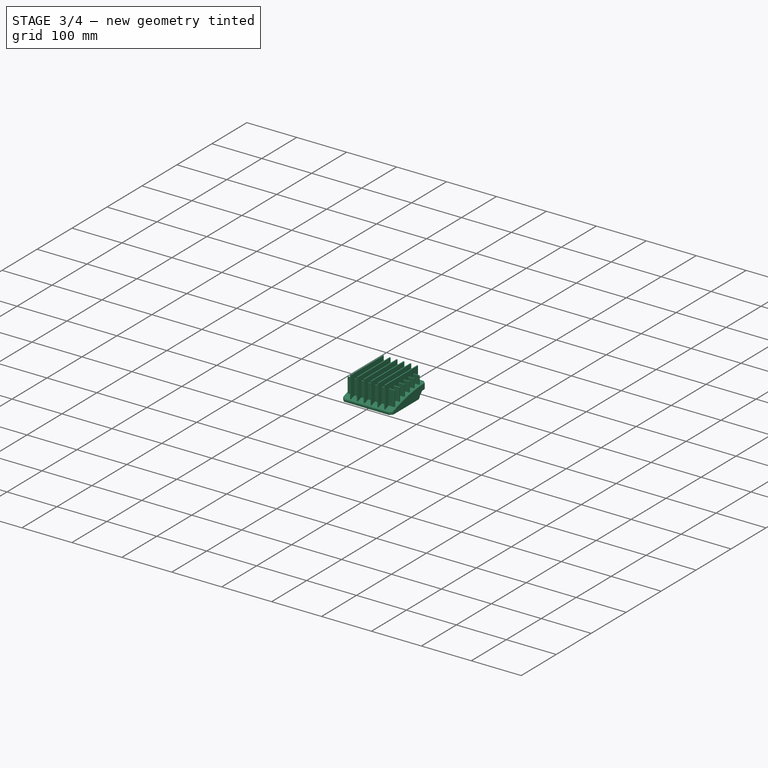
[diagram: stage 3 of 4 — iso view after this stage's code; geometry added in this stage tinted green]
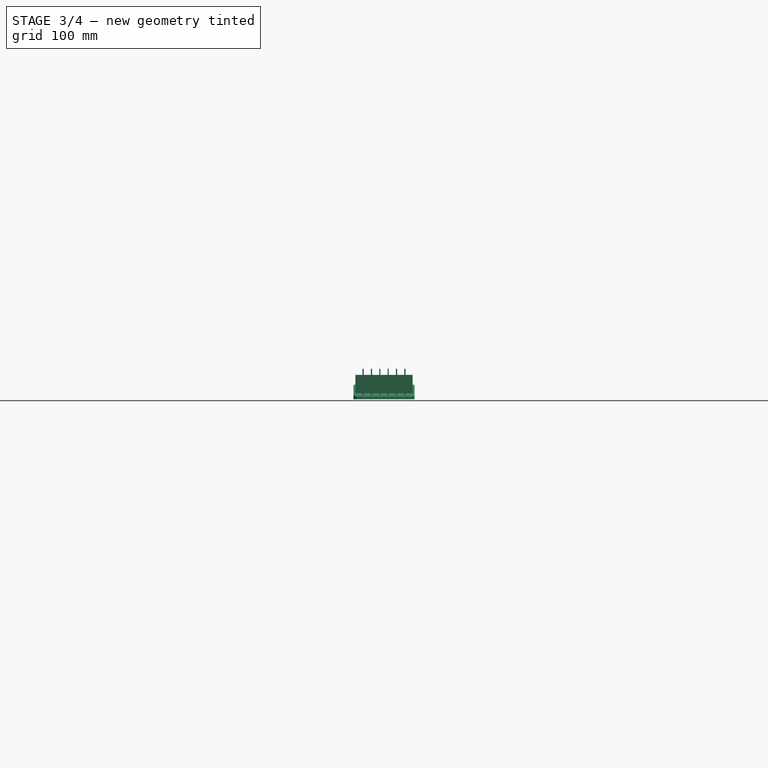
[diagram: stage 3 of 4 — front view after this stage's code; geometry added in this stage tinted green]
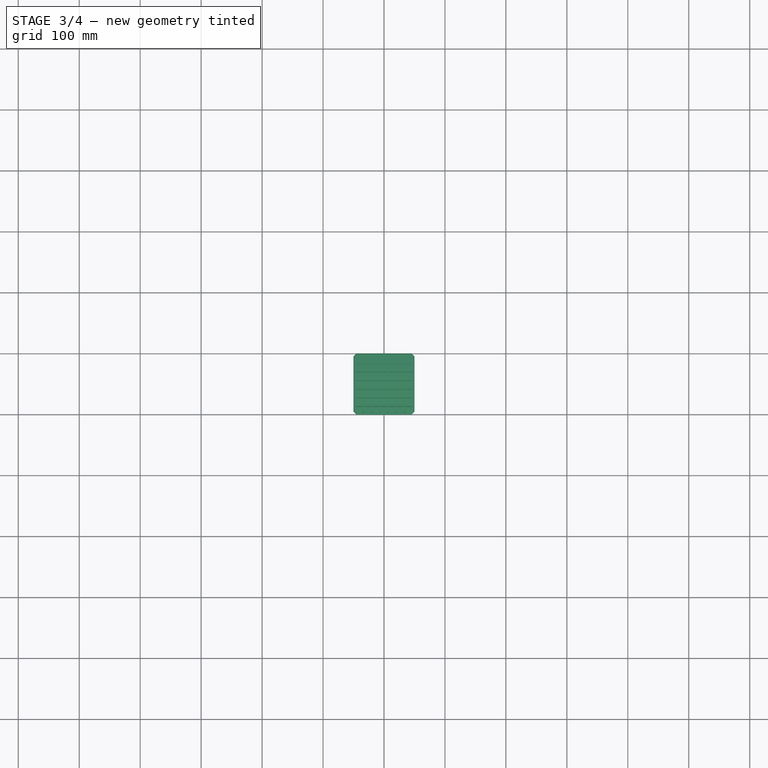
[diagram: stage 3 of 4 — top view after this stage's code; geometry added in this stage tinted green]
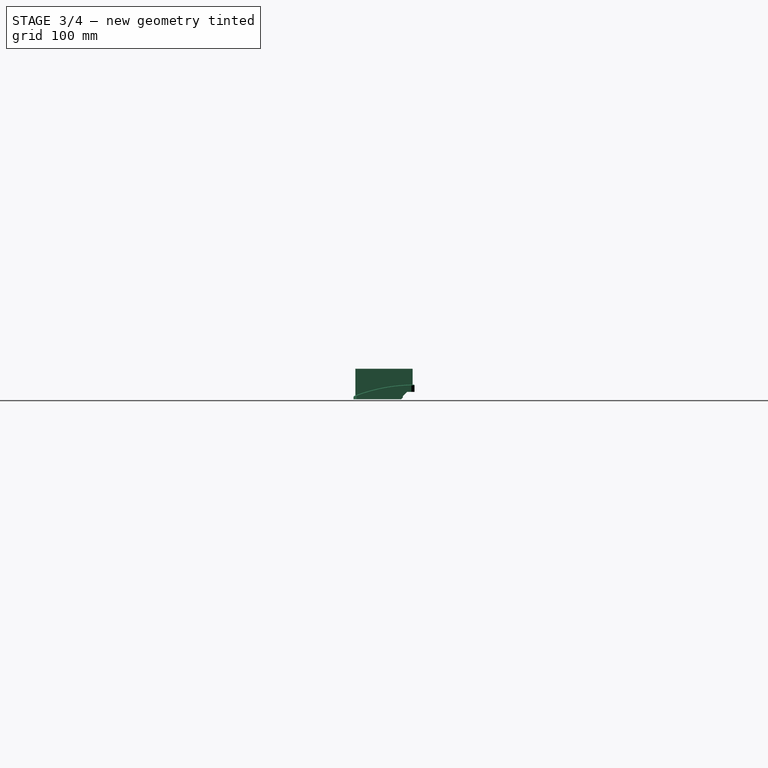
[diagram: stage 3 of 4 — right view after this stage's code; geometry added in this stage tinted green]
FEATURE [PartDesign::Pocket] Pocket001  label="PocketBottomEdge"
  BaseFeature = -> Pad003
  ClaimChildren = false
  Fit = 0
  FitJoin = 0
  InnerFit = 0
  InnerFitJoin = 0
  InnerTaperAngle = 0
  InnerTaperAngleRev = 0
  Length = 5
  Length2 = 100
  Midplane = true
  NewSolid = false
  Profile = -> Sketch006
  Suppress = false
  Type = 1
FEATURE [PartDesign::Chamfer] Chamfer002
  Angle = 45
  Base = -> Pocket001 [Edge45,Edge47,Edge48,Edge46,Edge44,Edge5,Edge4,Edge42]
  BaseFeature = -> Pocket001
  ChamferType = 0
  FlipDirection = false
  NewSolid = false
  Size = 1
  Size2 = 1
  SupportTransform = false
  Suppress = false
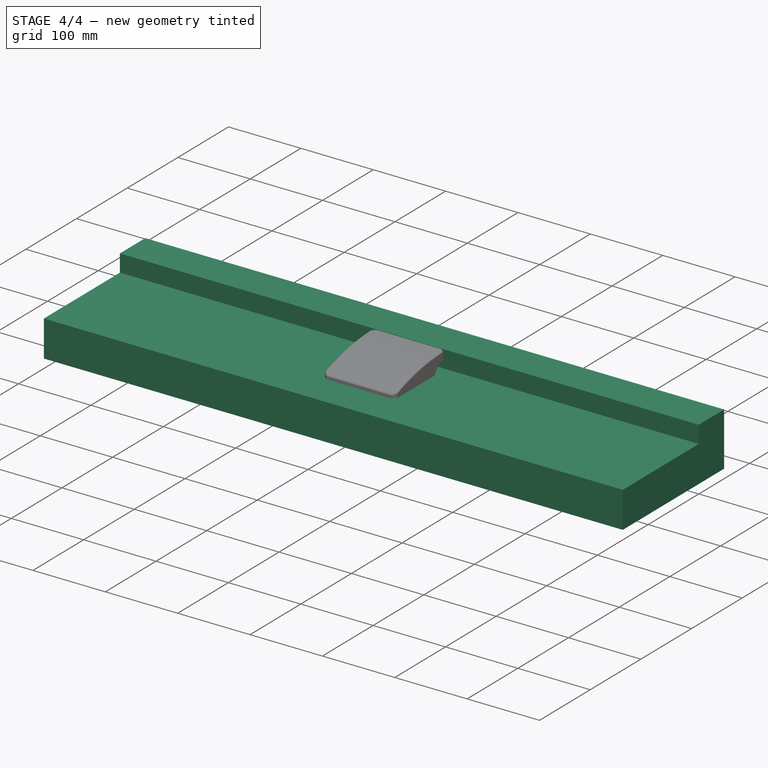
[diagram: stage 4 of 4 — iso view after this stage's code; geometry added in this stage tinted green]
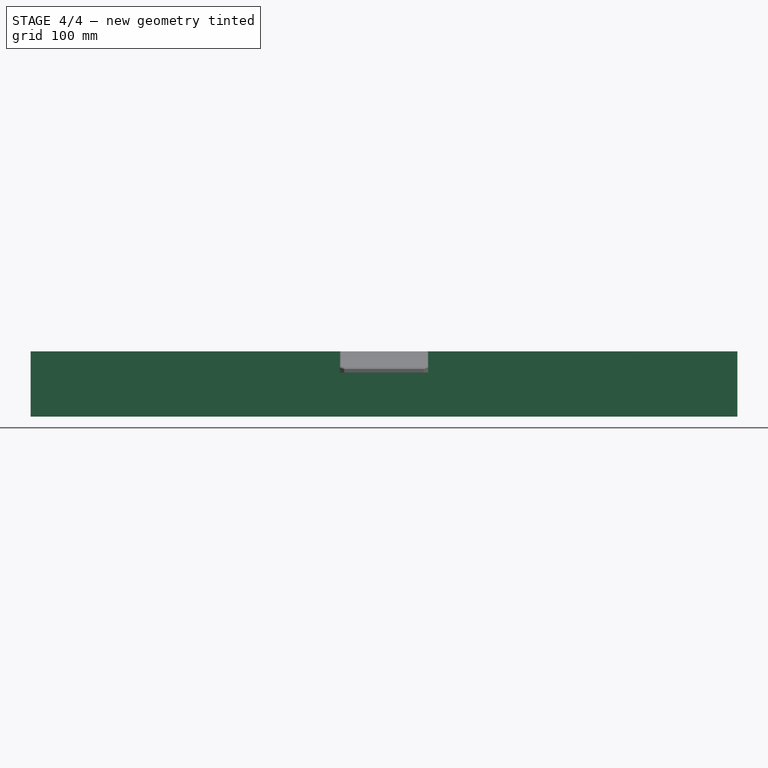
[diagram: stage 4 of 4 — front view after this stage's code; geometry added in this stage tinted green]
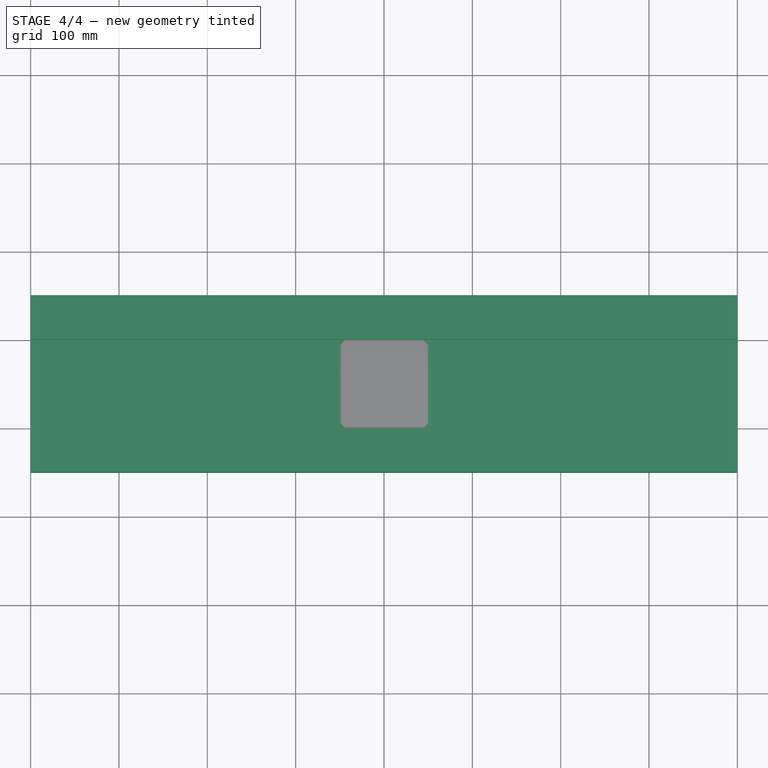
[diagram: stage 4 of 4 — top view after this stage's code; geometry added in this stage tinted green]
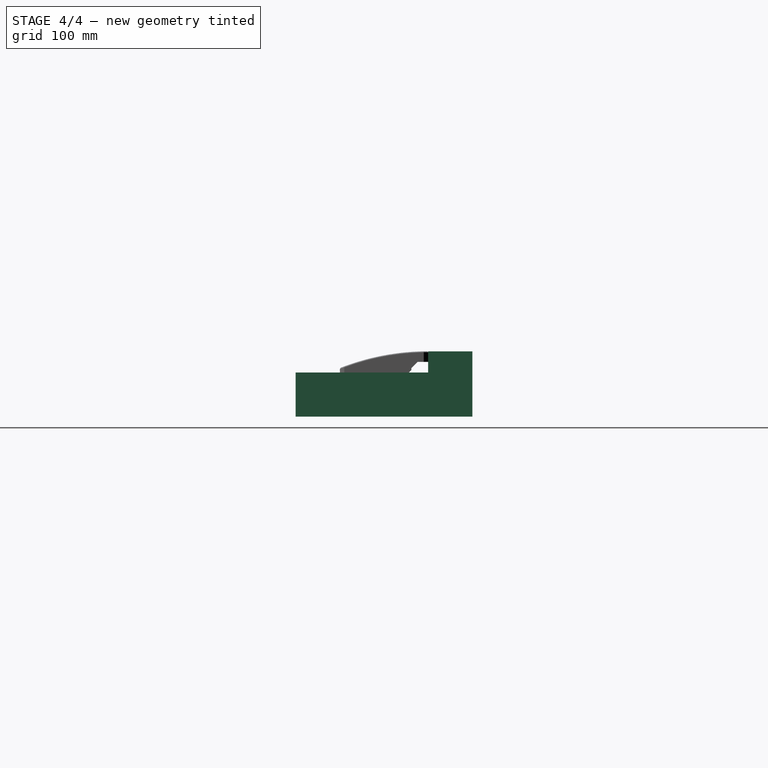
[diagram: stage 4 of 4 — right view after this stage's code; geometry added in this stage tinted green]
FEATURE [PartDesign::Plane] DatumPlane
  AttachmentOffset = pos=(0,0,24) rot=(0,0,-1;0.017453rad)
  Length = 803.369
  MapMode = 5
  MinimumLength = 10
  MinimumWidth = 10
  Placement = pos=(0,0,24) rot=(0,0,-1;0.017453rad)
  ResizeMode = 0
  Support = -> [XY_Plane]
  Width = 213.931
FEATURE [Sketcher::SketchObject] Sketch
  ExternalGeometry = -> [DatumPlane]
  MapMode = 5
  Placement = pos=(0,0,0) rot=(0.57735,0.57735,0.57735;2.0944rad)
  Support = -> [YZ_Plane]
  sketch-geometry (6):
    g0: LineSegment StartX=-150 StartY=0 StartZ=0 EndX=0 EndY=0 EndZ=0
    g1: LineSegment StartX=0 StartY=0 StartZ=0 EndX=0 EndY=24 EndZ=0
    g2: LineSegment StartX=0 StartY=24 StartZ=0 EndX=50 EndY=24 EndZ=0
    g3: LineSegment StartX=-150 StartY=0 StartZ=0 EndX=-150 EndY=-49.9976 EndZ=0
    g4: LineSegment StartX=50 StartY=24 StartZ=0 EndX=50 EndY=-49.9976 EndZ=0
    g5: LineSegment StartX=50 StartY=-49.9976 StartZ=0 EndX=-150 EndY=-49.9976 EndZ=0
  constraints (16):
    c: PointOnObject(g0,g-1)
    c: Coincident(g0,g-1)
    c: Coincident(g0,g1)
    c: PointOnObject(g1,g-2)
    c: Coincident(g1,g2)
    c: Horizontal(g2)
    c: DistanceX(g0,g0) = 150
    c: DistanceX(g2,g2) = 50
    c: Coincident(g0,g3)
    c: Vertical(g3)
    c: Coincident(g2,g4)
    c: Vertical(g4)
    c: Coincident(g4,g5)
    c: Coincident(g5,g3)
    c: Horizontal(g5)
    c: PointOnObject(g1,g-3)
FEATURE [PartDesign::Pad] Pad
  ClaimChildren = false
  Direction = (1,1,1)
  Fit = 0
  FitJoin = 0
  InnerFit = 0
  InnerFitJoin = 0
  InnerTaperAngle = 0
  InnerTaperAngleRev = 0
  Length = 800
  Length2 = 100
  Midplane = true
  NewSolid = false
  Placement = pos=(0,0,0) rot=(0.57735,0.57735,0.57735;2.0944rad)
  Profile = -> Sketch
  Suppress = false
  Type = 0
FEATURE [PartDesign::Pad] Pad004
  BaseFeature = -> Chamfer002
  ClaimChildren = false
  Direction = (1,1,1)
  Fit = 0
  FitJoin = 0
  InnerFit = 0
  InnerFitJoin = 0
  InnerTaperAngle = 0
  InnerTaperAngleRev = 0
  Length = 30
  Length2 = 100
  NewSolid = false
  Profile = -> Sketch008
  Suppress = false
  Type = 0
FEATURE [PartDesign::Pocket] Pocket  label="PocketShaveTopOff"
  BaseFeature = -> Pad004
  ClaimChildren = false
  Fit = 0
  FitJoin = 0
  InnerFit = 0
  InnerFitJoin = 0
  InnerTaperAngle = 0
  InnerTaperAngleRev = 0
  Length = 5
  Length2 = 100
  Midplane = true
  NewSolid = false
  Profile = -> Sketch005
  Reversed = true
  Suppress = false
  Type = 1
FEATURE [PartDesign::SubShapeBinder] Binder
  BindCopyOnChange = 0
  BindMode = 0
  ClaimChildren = false
  Context = -> Body001 [Binder.]
  FillStyle = 0
  Fuse = false
  MakeFace = true
  PartialLoad = false
  Relative = true
  Support = -> [Thickness[Face12]]
  _Version = 5
FEATURE [PartDesign::Body] Body001  label="Ramp01"
  ExportMode = 0
  Group = -> [ShapeBinder,Sketch001,Pad001,Chamfer,Thickness,Sketch002,Binder,Sketch003,Sketch004,Fillet,Pad002,Sketch007,Sketch005,Pad003,Sketch006,Pocket001,Chamfer002,Sketch008,Pad004,Pocket]
  Origin = -> Origin001
  SingleSolid = true
  Tip = -> Pocket
  _ExportChildren = -> [ShapeBinder,Pad001,Chamfer,Thickness,Sketch002,Binder,Sketch003,Fillet,Pad002,Pad003,Pocket001,Chamfer002,Pad004,Pocket]
  _GroupVersion = 1
FEATURE [TechDraw::DrawSVGTemplate] Template
  EditableTexts = Designed_by_Name=Designed by Name; Drawing_number=Drawing number; FC-Date=Date; FC-SC=Scale; FC-SH=Sheet; FC-Title=Modular Ramp v1.1; Subtitle=Subtitle; Weight=Weight
  Height = 210
  Orientation = 1
  Width = 297
FEATURE [TechDraw::DrawViewPart] View
  CoarseView = false
  Direction = (0.41,-0.709,0.574)
  Focus = 100
  HardHidden = false
  IsoCount = 0
  IsoHidden = false
  IsoVisible = false
  LockPosition = false
  Perspective = false
  Rotation = 0
  ScaleType = 0
  SeamHidden = false
  SeamVisible = true
  SmoothHidden = false
  SmoothVisible = true
  Source = -> [Body001]
  X = 94.3446
  XDirection = (0.866,0.5,0)
  Y = 90.3378
FEATURE [TechDraw::DrawViewPart] View001
  CoarseView = false
  Direction = (-0.41,0.709,-0.574)
  Focus = 100
  HardHidden = false
  IsoCount = 0
  IsoHidden = false
  IsoVisible = false
  LockPosition = false
  Perspective = false
  Rotation = 0
  ScaleType = 0
  SeamHidden = false
  SeamVisible = true
  SmoothHidden = false
  SmoothVisible = true
  Source = -> [Body001]
  X = 209.514
  XDirection = (0.866,0.5,0)
  Y = 139.527
FEATURE [TechDraw::DrawPage] Page
  KeepUpdated = true
  NextBalloonIndex = 1
  ProjectionType = 0
  Template = -> Template
  Views = -> [View,View001]
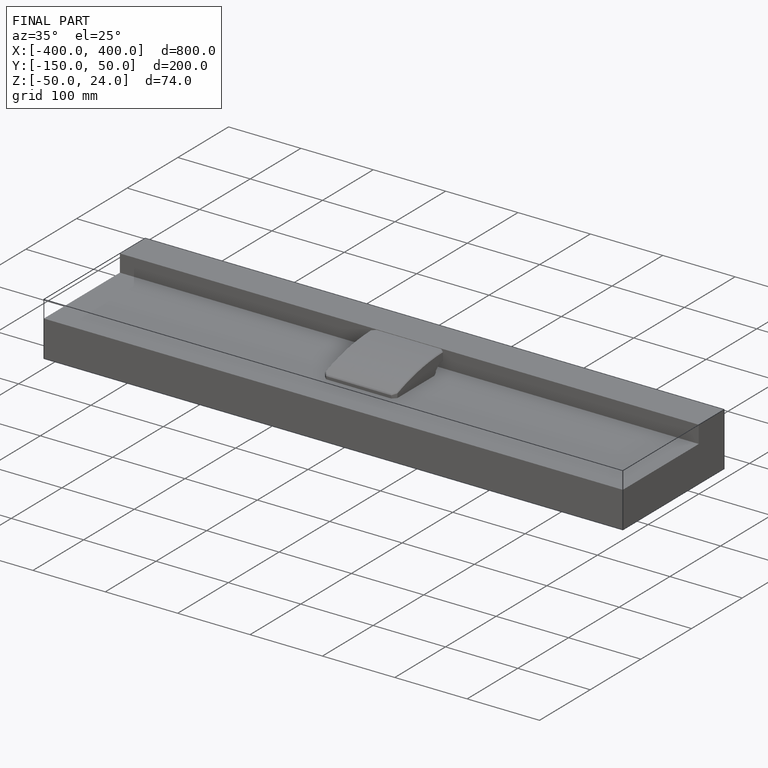
[diagram: finished part — iso view with bounding-box wireframe]
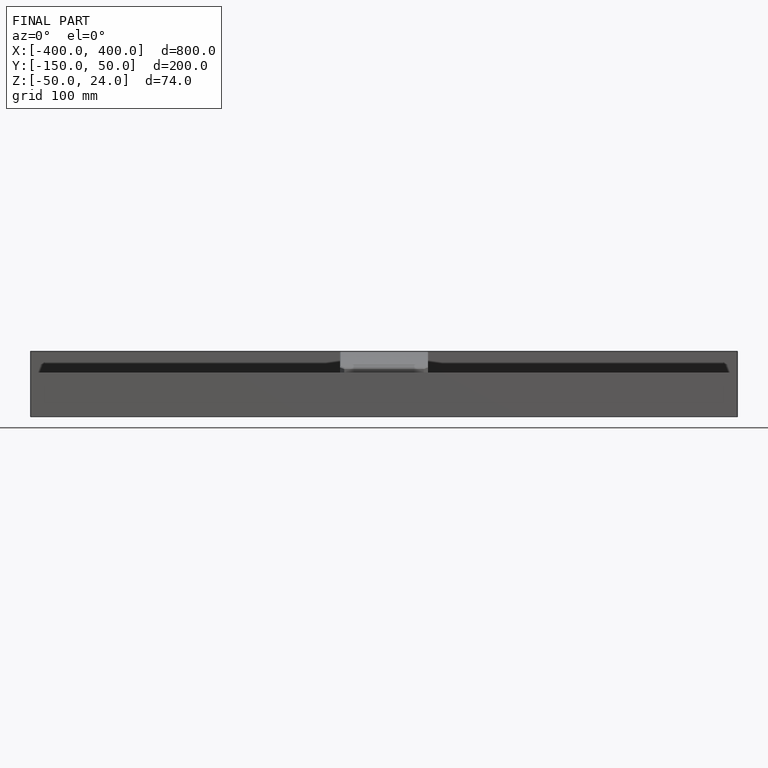
[diagram: finished part — front view with bounding-box wireframe]
